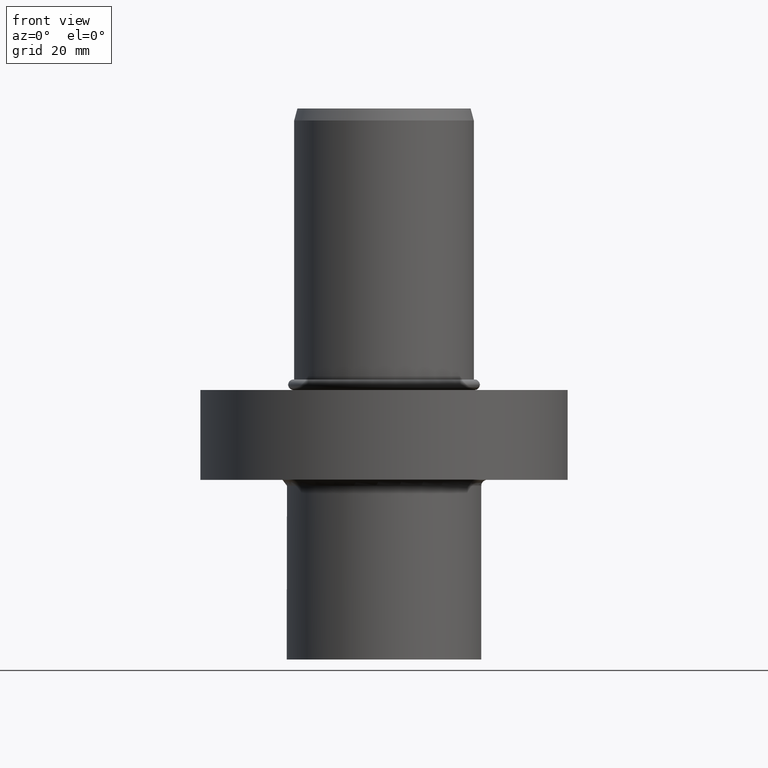
[diagram: clean part render]
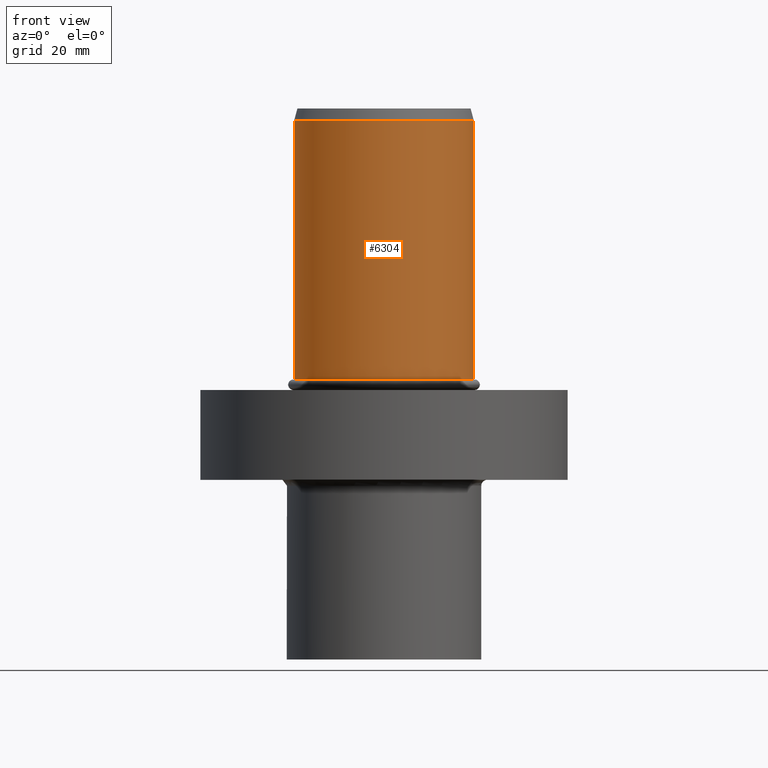
[diagram: same view with one face highlighted and labeled with its STEP entity id]
A machine part, front view. The second image highlights one B-rep face of the part: STEP entity #6304.
In plain terms, the highlighted cylindrical surface (bore or boss wall) has radius 30 mm, axis along (0, 0, 1).
Its self-contained STEP definition (entity closure, byte-faithful):
#14 =( BOUNDED_CURVE ( )  B_SPLINE_CURVE ( 3, ( #11727, #9599, #10872, #2144 ),
 .UNSPECIFIED., .F., .F. ) 
 B_SPLINE_CURVE_WITH_KNOTS ( ( 4, 4 ),
 ( 2.460152996089493005, 2.555907110132639826 ),
 .UNSPECIFIED. ) 
 CURVE ( )  GEOMETRIC_REPRESENTATION_ITEM ( )  RATIONAL_B_SPLINE_CURVE ( ( 1.000000000000000000, 0.9992360750769040401, 0.9992360750769040401, 1.000000000000000000 ) ) 
 REPRESENTATION_ITEM ( '' )  );
#53 = LINE ( 'NONE', #3240, #12685 ) ;
#67 = CARTESIAN_POINT ( 'NONE',  ( 16.58312395177700083, 25.00000000000000000, 16.00000000000000000 ) ) ;
#74 = EDGE_CURVE ( 'NONE', #9437, #3814, #6940, .T. ) ;
#76 = EDGE_CURVE ( 'NONE', #6150, #6893, #8087, .T. ) ;
#78 = CARTESIAN_POINT ( 'NONE',  ( 18.89735431217819794, 23.30000000000000071, 49.70000000000000284 ) ) ;
#95 = EDGE_CURVE ( 'NONE', #6652, #8851, #5955, .T. ) ;
#137 = CARTESIAN_POINT ( 'NONE',  ( 18.89735431217819794, 23.30000000000000071, 45.69999999999999574 ) ) ;
#141 = CARTESIAN_POINT ( 'NONE',  ( -18.89735431217819794, 23.30000000000000071, 21.69999999999999929 ) ) ;
#161 = EDGE_CURVE ( 'NONE', #8851, #8178, #11058, .T. ) ;
#174 = EDGE_CURVE ( 'NONE', #10053, #1658, #11612, .T. ) ;
#193 = VERTEX_POINT ( 'NONE', #10844 ) ;
#203 = CARTESIAN_POINT ( 'NONE',  ( 17.38137989915074755, 24.47049690717833315, 38.87049690717829264 ) ) ;
#219 = ORIENTED_EDGE ( 'NONE', *, *, #13774, .T. ) ;
#237 = EDGE_CURVE ( 'NONE', #13995, #8702, #10079, .T. ) ;
#282 = VERTEX_POINT ( 'NONE', #1602 ) ;
#331 = CARTESIAN_POINT ( 'NONE',  ( 18.89735431217819794, 23.30000000000000071, 29.69999999999999929 ) ) ;
#355 = CARTESIAN_POINT ( 'NONE',  ( -17.38137989915073334, 24.47049690717831893, 38.87049690717828554 ) ) ;
#356 = VERTEX_POINT ( 'NONE', #6063 ) ;
#375 = CARTESIAN_POINT ( 'NONE',  ( 18.89735431217819794, 23.30000000000000071, 57.70000000000000284 ) ) ;
#383 =( BOUNDED_CURVE ( )  B_SPLINE_CURVE ( 3, ( #11099, #10184, #12116, #6704 ),
 .UNSPECIFIED., .F., .T. ) 
 B_SPLINE_CURVE_WITH_KNOTS ( ( 4, 4 ),
 ( 2.460152996089497002, 2.555907110132643378 ),
 .UNSPECIFIED. ) 
 CURVE ( )  GEOMETRIC_REPRESENTATION_ITEM ( )  RATIONAL_B_SPLINE_CURVE ( ( 1.000000000000000000, 0.9992360750769040401, 0.9992360750769040401, 1.000000000000000000 ) ) 
 REPRESENTATION_ITEM ( '' )  );
#390 = VERTEX_POINT ( 'NONE', #13832 ) ;
#391 = FACE_OUTER_BOUND ( 'NONE', #11329, .T. ) ;
#401 = LINE ( 'NONE', #10182, #12274 ) ;
#433 = VERTEX_POINT ( 'NONE', #8273 ) ;
#437 = EDGE_CURVE ( 'NONE', #1512, #4873, #9147, .T. ) ;
#449 = ORIENTED_EDGE ( 'NONE', *, *, #8462, .F. ) ;
#453 = CYLINDRICAL_SURFACE ( 'NONE', #9825, 30.00000000000000000 ) ;
#460 =( BOUNDED_CURVE ( )  B_SPLINE_CURVE ( 3, ( #10325, #13674, #533, #5061 ),
 .UNSPECIFIED., .F., .T. ) 
 B_SPLINE_CURVE_WITH_KNOTS ( ( 4, 4 ),
 ( 3.727278197046944630, 3.823032311090091007 ),
 .UNSPECIFIED. ) 
 CURVE ( )  GEOMETRIC_REPRESENTATION_ITEM ( )  RATIONAL_B_SPLINE_CURVE ( ( 1.000000000000000000, 0.9992360750769040401, 0.9992360750769040401, 1.000000000000000000 ) ) 
 REPRESENTATION_ITEM ( '' )  );
#466 = LINE ( 'NONE', #12324, #5195 ) ;
#504 = VECTOR ( 'NONE', #4166, 1000.000000000000000 ) ;
#522 = CARTESIAN_POINT ( 'NONE',  ( 18.15337976922591068, 23.90339701877299916, 66.30339701877316827 ) ) ;
#526 = DIRECTION ( 'NONE',  ( -1.000000000000000000, 4.440892098500630106E-16, 4.440892098500630106E-16 ) ) ;
#533 = CARTESIAN_POINT ( 'NONE',  ( -18.15337976922584318, 23.90339701877300982, 22.30339701877300129 ) ) ;
#542 = CARTESIAN_POINT ( 'NONE',  ( -16.58312395177700083, 25.00000000000000000, 20.00000000000000000 ) ) ;
#543 =( BOUNDED_CURVE ( )  B_SPLINE_CURVE ( 3, ( #1797, #6119, #10465, #11594 ),
 .UNSPECIFIED., .F., .T. ) 
 B_SPLINE_CURVE_WITH_KNOTS ( ( 4, 4 ),
 ( 2.460152996089493005, 2.555907110132639382 ),
 .UNSPECIFIED. ) 
 CURVE ( )  GEOMETRIC_REPRESENTATION_ITEM ( )  RATIONAL_B_SPLINE_CURVE ( ( 1.000000000000000000, 0.9992360750769040401, 0.9992360750769040401, 1.000000000000000000 ) ) 
 REPRESENTATION_ITEM ( '' )  );
#603 = VERTEX_POINT ( 'NONE', #2170 ) ;
#609 = VERTEX_POINT ( 'NONE', #11458 ) ;
#640 = CARTESIAN_POINT ( 'NONE',  ( 18.15337976922591068, 23.90339701877299206, 42.30339701877315406 ) ) ;
#650 = VERTEX_POINT ( 'NONE', #13311 ) ;
#699 = VERTEX_POINT ( 'NONE', #10959 ) ;
#719 = CARTESIAN_POINT ( 'NONE',  ( -16.58312395177700083, 25.00000000000000000, 28.00000000000000000 ) ) ;
#725 = CARTESIAN_POINT ( 'NONE',  ( -18.15337976922589291, 23.90339701877297784, 42.30339701877313985 ) ) ;
#727 = CARTESIAN_POINT ( 'NONE',  ( 16.58312395177700083, 25.00000000000000000, 39.39999999999999858 ) ) ;
#739 = CARTESIAN_POINT ( 'NONE',  ( 16.58312395177700083, 25.00000000000000000, 67.40000000000000568 ) ) ;
#763 = CARTESIAN_POINT ( 'NONE',  ( -17.38137989915073689, 24.47049690717831538, 34.87049690717828554 ) ) ;
#775 = VECTOR ( 'NONE', #9092, 1000.000000000000000 ) ;
#776 = CARTESIAN_POINT ( 'NONE',  ( -18.15337976922581831, 23.90339701877302048, 70.30339701877318248 ) ) ;
#789 = EDGE_LOOP ( 'NONE', ( #449, #5563, #5261, #3732, #1267, #1888, #10252, #9625, #11817, #9692, #1316, #7750, #11628, #11221, #7165, #9424, #9407, #12714, #6290, #5292, #3493, #8182, #10790, #4720, #4881, #11018, #11673, #9758, #13770, #4237, #8385, #7005, #11696, #9307, #3245, #6668, #5430, #12700, #1646, #1526, #3566, #6593, #219, #12131, #9332, #12596, #2749, #12393, #4845, #14013, #10839, #7746, #2671, #10430, #6554, #11165, #12102, #9942, #5162, #13305, #3809, #11610, #8805, #2705, #5308, #13952, #4036, #13128, #2891, #4790, #5674, #8097, #9125, #4780, #9720, #2921, #12924, #12593, #11587, #8256, #4458, #2546, #12606, #9830, #8071, #12320, #11082, #13587 ) ) ;
#804 = EDGE_CURVE ( 'NONE', #11737, #5730, #543, .T. ) ;
#838 = VECTOR ( 'NONE', #5363, 1000.000000000000000 ) ;
#841 = CARTESIAN_POINT ( 'NONE',  ( 18.15337976922586094, 23.90339701877301692, 18.30339701877300129 ) ) ;
#873 = CARTESIAN_POINT ( 'NONE',  ( 18.89735431217819794, 23.30000000000000071, 69.70000000000000284 ) ) ;
#911 = CARTESIAN_POINT ( 'NONE',  ( -16.58312395177700083, 25.00000000000000000, 55.39999999999999858 ) ) ;
#928 =( BOUNDED_CURVE ( )  B_SPLINE_CURVE ( 3, ( #13824, #1947, #11604, #10327 ),
 .UNSPECIFIED., .F., .F. ) 
 B_SPLINE_CURVE_WITH_KNOTS ( ( 4, 4 ),
 ( 3.727278197046944630, 3.823032311090091451 ),
 .UNSPECIFIED. ) 
 CURVE ( )  GEOMETRIC_REPRESENTATION_ITEM ( )  RATIONAL_B_SPLINE_CURVE ( ( 1.000000000000000000, 0.9992360750769040401, 0.9992360750769040401, 1.000000000000000000 ) ) 
 REPRESENTATION_ITEM ( '' )  );
#947 = CARTESIAN_POINT ( 'NONE',  ( -16.58312395177700083, 25.00000000000000000, 52.00000000000000000 ) ) ;
#953 = CARTESIAN_POINT ( 'NONE',  ( -18.89735431217819794, 23.30000000000000071, 45.69999999999999574 ) ) ;
#962 = VERTEX_POINT ( 'NONE', #2765 ) ;
#1048 = CARTESIAN_POINT ( 'NONE',  ( -16.58312395177700083, 25.00000000000000000, 4.302769414721900113E-15 ) ) ;
#1113 = VERTEX_POINT ( 'NONE', #5466 ) ;
#1138 = CARTESIAN_POINT ( 'NONE',  ( -18.15337976922583607, 23.90339701877301337, 38.30339701877298353 ) ) ;
#1140 = CARTESIAN_POINT ( 'NONE',  ( 17.38137989915080084, 24.47049690717830472, 48.52950309282152119 ) ) ;
#1151 = CARTESIAN_POINT ( 'NONE',  ( 16.58312395177700083, 25.00000000000000000, 27.40000000000000213 ) ) ;
#1179 = EDGE_CURVE ( 'NONE', #11442, #6370, #5351, .T. ) ;
#1198 = CARTESIAN_POINT ( 'NONE',  ( -18.15337976922589647, 23.90339701877297784, 53.09660298122688005 ) ) ;
#1203 = CARTESIAN_POINT ( 'NONE',  ( 17.38137989915079018, 24.47049690717829407, 16.52950309282152119 ) ) ;
#1213 = EDGE_CURVE ( 'NONE', #650, #13068, #8158, .T. ) ;
#1252 = CARTESIAN_POINT ( 'NONE',  ( -16.58312395177700083, 25.00000000000000000, 15.00000000000000000 ) ) ;
#1256 = CARTESIAN_POINT ( 'NONE',  ( -16.58312395177700083, 25.00000000000000000, 32.00000000000000000 ) ) ;
#1267 = ORIENTED_EDGE ( 'NONE', *, *, #4576, .T. ) ;
#1285 = EDGE_CURVE ( 'NONE', #1113, #12864, #12150, .T. ) ;
#1287 = LINE ( 'NONE', #5676, #12732 ) ;
#1316 = ORIENTED_EDGE ( 'NONE', *, *, #8658, .T. ) ;
#1325 = EDGE_CURVE ( 'NONE', #390, #3013, #2438, .T. ) ;
#1345 = EDGE_CURVE ( 'NONE', #11699, #7327, #4058, .T. ) ;
#1361 = EDGE_CURVE ( 'NONE', #3814, #12682, #13074, .T. ) ;
#1372 =( BOUNDED_CURVE ( )  B_SPLINE_CURVE ( 3, ( #11813, #12891, #6209, #3144 ),
 .UNSPECIFIED., .F., .T. ) 
 B_SPLINE_CURVE_WITH_KNOTS ( ( 4, 4 ),
 ( 3.727278197046944630, 3.823032311090091451 ),
 .UNSPECIFIED. ) 
 CURVE ( )  GEOMETRIC_REPRESENTATION_ITEM ( )  RATIONAL_B_SPLINE_CURVE ( ( 1.000000000000000000, 0.9992360750769040401, 0.9992360750769040401, 1.000000000000000000 ) ) 
 REPRESENTATION_ITEM ( '' )  );
#1435 = CARTESIAN_POINT ( 'NONE',  ( -16.58312395177690135, 25.00000000000000000, 68.00000000000000000 ) ) ;
#1456 = CARTESIAN_POINT ( 'NONE',  ( -18.89735431217819794, 23.30000000000000071, 17.69999999999999929 ) ) ;
#1463 =( BOUNDED_CURVE ( )  B_SPLINE_CURVE ( 3, ( #8588, #9876, #7940, #9072 ),
 .UNSPECIFIED., .F., .T. ) 
 B_SPLINE_CURVE_WITH_KNOTS ( ( 4, 4 ),
 ( 3.727278197046944630, 3.823032311090091451 ),
 .UNSPECIFIED. ) 
 CURVE ( )  GEOMETRIC_REPRESENTATION_ITEM ( )  RATIONAL_B_SPLINE_CURVE ( ( 1.000000000000000000, 0.9992360750769040401, 0.9992360750769040401, 1.000000000000000000 ) ) 
 REPRESENTATION_ITEM ( '' )  );
#1476 = CARTESIAN_POINT ( 'NONE',  ( -16.58312395177700083, 25.00000000000000000, 20.00000000000000000 ) ) ;
#1485 = CARTESIAN_POINT ( 'NONE',  ( -18.15337976922590002, 23.90339701877297784, 25.09660298122687294 ) ) ;
#1498 = DIRECTION ( 'NONE',  ( 4.440892098500630106E-16, 1.224646799147350002E-16, 1.000000000000000000 ) ) ;
#1499 = CARTESIAN_POINT ( 'NONE',  ( 18.15337976922591068, 23.90339701877299916, 62.30339701877316827 ) ) ;
#1503 = CARTESIAN_POINT ( 'NONE',  ( -18.15337976922589291, 23.90339701877297784, 37.09660298122687294 ) ) ;
#1512 = VERTEX_POINT ( 'NONE', #12729 ) ;
#1525 = CARTESIAN_POINT ( 'NONE',  ( -18.15337976922584318, 23.90339701877299916, 66.30339701877318248 ) ) ;
#1526 = ORIENTED_EDGE ( 'NONE', *, *, #2710, .T. ) ;
#1586 = CARTESIAN_POINT ( 'NONE',  ( 18.15337976922591423, 23.90339701877299206, 29.09660298122683386 ) ) ;
#1601 = EDGE_CURVE ( 'NONE', #699, #4604, #3434, .T. ) ;
#1602 = CARTESIAN_POINT ( 'NONE',  ( 16.58312395177700083, 25.00000000000000000, 36.00000000000000000 ) ) ;
#1620 = CARTESIAN_POINT ( 'NONE',  ( -18.89735431217819794, 23.30000000000000071, 53.69999999999999574 ) ) ;
#1630 = EDGE_CURVE ( 'NONE', #4367, #193, #11864, .T. ) ;
#1635 = CARTESIAN_POINT ( 'NONE',  ( -16.58312395177700083, 25.00000000000000000, 4.302769414721900113E-15 ) ) ;
#1646 = ORIENTED_EDGE ( 'NONE', *, *, #3874, .T. ) ;
#1658 = VERTEX_POINT ( 'NONE', #947 ) ;
#1662 = CARTESIAN_POINT ( 'NONE',  ( -18.15337976922583962, 23.90339701877300982, 30.30339701877300485 ) ) ;
#1685 = VERTEX_POINT ( 'NONE', #14003 ) ;
#1702 = CARTESIAN_POINT ( 'NONE',  ( 16.58312395177700083, 25.00000000000000000, 55.39999999999999858 ) ) ;
#1709 = EDGE_CURVE ( 'NONE', #12339, #1113, #1463, .T. ) ;
#1746 = CARTESIAN_POINT ( 'NONE',  ( 17.38137989915075465, 24.47049690717832249, 30.87049690717831396 ) ) ;
#1757 = LINE ( 'NONE', #11403, #8948 ) ;
#1797 = CARTESIAN_POINT ( 'NONE',  ( -18.89735431217819794, 23.30000000000000071, 49.70000000000000284 ) ) ;
#1814 = CARTESIAN_POINT ( 'NONE',  ( 18.89735431217819794, 23.30000000000000071, 17.69999999999999929 ) ) ;
#1852 = CARTESIAN_POINT ( 'NONE',  ( 16.58312395177700083, 25.00000000000000000, 15.00000000000000000 ) ) ;
#1862 = CARTESIAN_POINT ( 'NONE',  ( -16.58312395177700083, 25.00000000000000000, 4.302769414721900113E-15 ) ) ;
#1888 = ORIENTED_EDGE ( 'NONE', *, *, #11863, .T. ) ;
#1928 = LINE ( 'NONE', #5190, #4147 ) ;
#1938 = CARTESIAN_POINT ( 'NONE',  ( 16.58312395177700083, 25.00000000000000000, 47.39999999999999858 ) ) ;
#1947 = CARTESIAN_POINT ( 'NONE',  ( 17.38137989915079373, 24.47049690717830828, 44.52950309282152119 ) ) ;
#1957 = CARTESIAN_POINT ( 'NONE',  ( 18.15337976922586805, 23.90339701877301692, 30.30339701877301195 ) ) ;
#1959 = DIRECTION ( 'NONE',  ( 4.440892098500630106E-16, 1.224646799147350002E-16, 1.000000000000000000 ) ) ;
#1975 = DIRECTION ( 'NONE',  ( 4.440892098500630106E-16, 1.224646799147350002E-16, 1.000000000000000000 ) ) ;
#1986 = CARTESIAN_POINT ( 'NONE',  ( -6.218671481916381083, 31.87500000000002132, 8.124999999999952038 ) ) ;
#1990 =( BOUNDED_CURVE ( )  B_SPLINE_CURVE ( 3, ( #7640, #355, #1138, #6651 ),
 .UNSPECIFIED., .F., .F. ) 
 B_SPLINE_CURVE_WITH_KNOTS ( ( 4, 4 ),
 ( 3.727278197046944630, 3.823032311090091007 ),
 .UNSPECIFIED. ) 
 CURVE ( )  GEOMETRIC_REPRESENTATION_ITEM ( )  RATIONAL_B_SPLINE_CURVE ( ( 1.000000000000000000, 0.9992360750769040401, 0.9992360750769040401, 1.000000000000000000 ) ) 
 REPRESENTATION_ITEM ( '' )  );
#2001 = VERTEX_POINT ( 'NONE', #3453 ) ;
#2025 = CARTESIAN_POINT ( 'NONE',  ( -16.58312395177700083, 25.00000000000000000, 59.39999999999999858 ) ) ;
#2026 = VERTEX_POINT ( 'NONE', #6848 ) ;
#2042 = CARTESIAN_POINT ( 'NONE',  ( 18.89735431217819794, 23.30000000000000071, 61.69999999999999574 ) ) ;
#2053 = EDGE_CURVE ( 'NONE', #3640, #12693, #8624, .T. ) ;
#2063 = CARTESIAN_POINT ( 'NONE',  ( -16.58312395177700083, 25.00000000000000000, 60.00000000000000000 ) ) ;
#2144 = CARTESIAN_POINT ( 'NONE',  ( -16.58312395177700083, 25.00000000000000000, 44.00000000000000000 ) ) ;
#2152 = CARTESIAN_POINT ( 'NONE',  ( -16.58312395177700083, 25.00000000000000000, 32.00000000000000000 ) ) ;
#2170 = CARTESIAN_POINT ( 'NONE',  ( 16.58312395177700083, 25.00000000000000000, 63.39999999999999858 ) ) ;
#2200 = CARTESIAN_POINT ( 'NONE',  ( 16.58312395177700083, 25.00000000000000000, -1.042600341045870012E-14 ) ) ;
#2208 = VECTOR ( 'NONE', #1498, 1000.000000000000000 ) ;
#2254 = CARTESIAN_POINT ( 'NONE',  ( -18.89735431217819794, 23.30000000000000071, 37.69999999999999574 ) ) ;
#2256 = CARTESIAN_POINT ( 'NONE',  ( -17.38137989915078663, 24.47049690717828696, 52.52950309282157093 ) ) ;
#2287 = CARTESIAN_POINT ( 'NONE',  ( -18.15337976922589291, 23.90339701877297784, 46.30339701877314695 ) ) ;
#2290 = CARTESIAN_POINT ( 'NONE',  ( -16.58312395177700083, 25.00000000000000000, 28.00000000000000000 ) ) ;
#2329 = VERTEX_POINT ( 'NONE', #6881 ) ;
#2353 = CARTESIAN_POINT ( 'NONE',  ( 17.38137989915079373, 24.47049690717830828, 62.87049690717847028 ) ) ;
#2357 =( BOUNDED_CURVE ( )  B_SPLINE_CURVE ( 3, ( #141, #10918, #2391, #1476 ),
 .UNSPECIFIED., .F., .F. ) 
 B_SPLINE_CURVE_WITH_KNOTS ( ( 4, 4 ),
 ( 2.460152996089493449, 2.555907110132639826 ),
 .UNSPECIFIED. ) 
 CURVE ( )  GEOMETRIC_REPRESENTATION_ITEM ( )  RATIONAL_B_SPLINE_CURVE ( ( 1.000000000000000000, 0.9992360750769040401, 0.9992360750769040401, 1.000000000000000000 ) ) 
 REPRESENTATION_ITEM ( '' )  );
#2387 = EDGE_CURVE ( 'NONE', #13639, #699, #13731, .T. ) ;
#2391 = CARTESIAN_POINT ( 'NONE',  ( -17.38137989915079018, 24.47049690717828696, 20.52950309282156383 ) ) ;
#2397 = CARTESIAN_POINT ( 'NONE',  ( 16.58312395177700083, 25.00000000000000000, -1.042600341045870012E-14 ) ) ;
#2438 =( BOUNDED_CURVE ( )  B_SPLINE_CURVE ( 3, ( #12722, #12641, #6096, #719 ),
 .UNSPECIFIED., .F., .T. ) 
 B_SPLINE_CURVE_WITH_KNOTS ( ( 4, 4 ),
 ( 2.460152996089493449, 2.555907110132639826 ),
 .UNSPECIFIED. ) 
 CURVE ( )  GEOMETRIC_REPRESENTATION_ITEM ( )  RATIONAL_B_SPLINE_CURVE ( ( 1.000000000000000000, 0.9992360750769040401, 0.9992360750769040401, 1.000000000000000000 ) ) 
 REPRESENTATION_ITEM ( '' )  );
#2463 = LINE ( 'NONE', #2397, #12042 ) ;
#2468 = CARTESIAN_POINT ( 'NONE',  ( -16.58312395177700083, 25.00000000000000000, 24.00000000000000000 ) ) ;
#2507 = FACE_OUTER_BOUND ( 'NONE', #789, .T. ) ;
#2517 = VERTEX_POINT ( 'NONE', #1151 ) ;
#2546 = ORIENTED_EDGE ( 'NONE', *, *, #9863, .T. ) ;
#2563 = LINE ( 'NONE', #4377, #775 ) ;
#2587 = CARTESIAN_POINT ( 'NONE',  ( 18.89735431217819794, 23.30000000000000071, 41.70000000000000284 ) ) ;
#2619 = CARTESIAN_POINT ( 'NONE',  ( 18.15337976922591423, 23.90339701877300271, 70.30339701877316827 ) ) ;
#2667 = CARTESIAN_POINT ( 'NONE',  ( -16.58312395177700083, 25.00000000000000000, 64.00000000000000000 ) ) ;
#2671 = ORIENTED_EDGE ( 'NONE', *, *, #13304, .T. ) ;
#2705 = ORIENTED_EDGE ( 'NONE', *, *, #10180, .T. ) ;
#2710 = EDGE_CURVE ( 'NONE', #9308, #10272, #2357, .T. ) ;
#2720 = CARTESIAN_POINT ( 'NONE',  ( 16.58312395177700083, 25.00000000000000000, -1.042600341045870012E-14 ) ) ;
#2749 = ORIENTED_EDGE ( 'NONE', *, *, #2053, .T. ) ;
#2762 = CARTESIAN_POINT ( 'NONE',  ( 16.58312395177700083, 25.00000000000000000, -1.042600341045870012E-14 ) ) ;
#2765 = CARTESIAN_POINT ( 'NONE',  ( -16.58312395177700083, 25.00000000000000000, 27.40000000000000213 ) ) ;
#2793 = EDGE_CURVE ( 'NONE', #6370, #4329, #7192, .T. ) ;
#2810 =( BOUNDED_CURVE ( )  B_SPLINE_CURVE ( 3, ( #12083, #12878, #2287, #953 ),
 .UNSPECIFIED., .F., .T. ) 
 B_SPLINE_CURVE_WITH_KNOTS ( ( 4, 4 ),
 ( 3.727278197046946850, 3.823032311090093227 ),
 .UNSPECIFIED. ) 
 CURVE ( )  GEOMETRIC_REPRESENTATION_ITEM ( )  RATIONAL_B_SPLINE_CURVE ( ( 1.000000000000000000, 0.9992360750769040401, 0.9992360750769040401, 1.000000000000000000 ) ) 
 REPRESENTATION_ITEM ( '' )  );
#2860 = CARTESIAN_POINT ( 'NONE',  ( 17.38137989915075110, 24.47049690717832249, 26.87049690717831041 ) ) ;
#2891 = ORIENTED_EDGE ( 'NONE', *, *, #1179, .T. ) ;
#2892 =( BOUNDED_CURVE ( )  B_SPLINE_CURVE ( 3, ( #7808, #2619, #6669, #7946 ),
 .UNSPECIFIED., .F., .T. ) 
 B_SPLINE_CURVE_WITH_KNOTS ( ( 4, 4 ),
 ( 2.460152996089495225, 2.555907110132642046 ),
 .UNSPECIFIED. ) 
 CURVE ( )  GEOMETRIC_REPRESENTATION_ITEM ( )  RATIONAL_B_SPLINE_CURVE ( ( 1.000000000000000000, 0.9992360750769040401, 0.9992360750769040401, 1.000000000000000000 ) ) 
 REPRESENTATION_ITEM ( '' )  );
#2916 = VERTEX_POINT ( 'NONE', #6460 ) ;
#2921 = ORIENTED_EDGE ( 'NONE', *, *, #5411, .T. ) ;
#2923 = EDGE_CURVE ( 'NONE', #356, #650, #13150, .T. ) ;
#2940 = CARTESIAN_POINT ( 'NONE',  ( 1.749265572480700057E-15, 6.465521545702379770E-16, 3.514498995305369800 ) ) ;
#2967 = AXIS2_PLACEMENT_3D ( 'NONE', #2940, #4301, #4172 ) ;
#3006 = EDGE_CURVE ( 'NONE', #13912, #603, #12517, .T. ) ;
#3013 = VERTEX_POINT ( 'NONE', #2290 ) ;
#3100 = DIRECTION ( 'NONE',  ( -1.000000000000000000, 4.440892098500630106E-16, 4.625929269271485914E-16 ) ) ;
#3107 = CARTESIAN_POINT ( 'NONE',  ( -16.58312395177700083, 25.00000000000000000, 40.00000000000000000 ) ) ;
#3144 = CARTESIAN_POINT ( 'NONE',  ( 18.89735431217819794, 23.30000000000000071, 61.69999999999999574 ) ) ;
#3145 = CARTESIAN_POINT ( 'NONE',  ( 16.58312395177700083, 25.00000000000000000, 59.39999999999999858 ) ) ;
#3151 = CARTESIAN_POINT ( 'NONE',  ( -16.58312395177700083, 25.00000000000000000, 4.302769414721900113E-15 ) ) ;
#3206 = CARTESIAN_POINT ( 'NONE',  ( 18.89735431217819794, 23.30000000000000071, 33.70000000000000284 ) ) ;
#3240 = CARTESIAN_POINT ( 'NONE',  ( -16.58312395177700083, 25.00000000000000000, 4.302769414721900113E-15 ) ) ;
#3245 = ORIENTED_EDGE ( 'NONE', *, *, #11071, .T. ) ;
#3279 =( BOUNDED_CURVE ( )  B_SPLINE_CURVE ( 3, ( #7014, #640, #13646, #10090 ),
 .UNSPECIFIED., .F., .F. ) 
 B_SPLINE_CURVE_WITH_KNOTS ( ( 4, 4 ),
 ( 2.460152996089494781, 2.555907110132641602 ),
 .UNSPECIFIED. ) 
 CURVE ( )  GEOMETRIC_REPRESENTATION_ITEM ( )  RATIONAL_B_SPLINE_CURVE ( ( 1.000000000000000000, 0.9992360750769040401, 0.9992360750769040401, 1.000000000000000000 ) ) 
 REPRESENTATION_ITEM ( '' )  );
#3310 = CARTESIAN_POINT ( 'NONE',  ( 17.38137989915075110, 24.47049690717832249, 22.87049690717831396 ) ) ;
#3344 = CARTESIAN_POINT ( 'NONE',  ( -18.89735431217819794, 23.30000000000000071, 53.69999999999999574 ) ) ;
#3347 =( BOUNDED_CURVE ( )  B_SPLINE_CURVE ( 3, ( #3524, #13695, #776, #3878 ),
 .UNSPECIFIED., .F., .F. ) 
 B_SPLINE_CURVE_WITH_KNOTS ( ( 4, 4 ),
 ( 3.727278197046944186, 3.823032311090091007 ),
 .UNSPECIFIED. ) 
 CURVE ( )  GEOMETRIC_REPRESENTATION_ITEM ( )  RATIONAL_B_SPLINE_CURVE ( ( 1.000000000000000000, 0.9992360750769040401, 0.9992360750769040401, 1.000000000000000000 ) ) 
 REPRESENTATION_ITEM ( '' )  );
#3365 = VERTEX_POINT ( 'NONE', #2025 ) ;
#3376 = CARTESIAN_POINT ( 'NONE',  ( 16.58312395177700083, 25.00000000000000000, 64.00000000000000000 ) ) ;
#3388 = LINE ( 'NONE', #7716, #13334 ) ;
#3434 =( BOUNDED_CURVE ( )  B_SPLINE_CURVE ( 3, ( #8164, #10449, #725, #5040 ),
 .UNSPECIFIED., .F., .T. ) 
 B_SPLINE_CURVE_WITH_KNOTS ( ( 4, 4 ),
 ( 3.727278197046946406, 3.823032311090093227 ),
 .UNSPECIFIED. ) 
 CURVE ( )  GEOMETRIC_REPRESENTATION_ITEM ( )  RATIONAL_B_SPLINE_CURVE ( ( 1.000000000000000000, 0.9992360750769040401, 0.9992360750769040401, 1.000000000000000000 ) ) 
 REPRESENTATION_ITEM ( '' )  );
#3435 = EDGE_CURVE ( 'NONE', #10235, #1512, #4803, .T. ) ;
#3453 = CARTESIAN_POINT ( 'NONE',  ( -18.89735431217819794, 23.30000000000000071, 17.69999999999999929 ) ) ;
#3468 = CARTESIAN_POINT ( 'NONE',  ( -18.89735431217819794, 23.30000000000000071, 57.70000000000000284 ) ) ;
#3492 = CARTESIAN_POINT ( 'NONE',  ( -16.58312395177700083, 25.00000000000000000, 67.40000000000000568 ) ) ;
#3493 = ORIENTED_EDGE ( 'NONE', *, *, #10454, .T. ) ;
#3524 = CARTESIAN_POINT ( 'NONE',  ( -16.58312395177690135, 25.00000000000000000, 71.40000000000000568 ) ) ;
#3543 = CARTESIAN_POINT ( 'NONE',  ( 16.58312395177700083, 25.00000000000000000, 90.00000000000000000 ) ) ;
#3561 = CARTESIAN_POINT ( 'NONE',  ( 16.58312395177700083, 25.00000000000000000, 24.00000000000000000 ) ) ;
#3566 = ORIENTED_EDGE ( 'NONE', *, *, #9095, .T. ) ;
#3599 = VECTOR ( 'NONE', #6377, 1000.000000000000000 ) ;
#3640 = VERTEX_POINT ( 'NONE', #7955 ) ;
#3647 = CARTESIAN_POINT ( 'NONE',  ( -16.58312395177700083, 25.00000000000000000, 67.40000000000000568 ) ) ;
#3725 = CARTESIAN_POINT ( 'NONE',  ( 17.38137989915080084, 24.47049690717831183, 64.52950309282151409 ) ) ;
#3730 = CARTESIAN_POINT ( 'NONE',  ( 18.89735431217819794, 23.30000000000000071, 41.70000000000000284 ) ) ;
#3732 = ORIENTED_EDGE ( 'NONE', *, *, #13805, .T. ) ;
#3759 = CARTESIAN_POINT ( 'NONE',  ( 16.58312395177700083, 25.00000000000000000, 24.00000000000000000 ) ) ;
#3795 =( BOUNDED_CURVE ( )  B_SPLINE_CURVE ( 3, ( #5913, #7042, #11095, #2587 ),
 .UNSPECIFIED., .F., .T. ) 
 B_SPLINE_CURVE_WITH_KNOTS ( ( 4, 4 ),
 ( 3.727278197046944630, 3.823032311090091451 ),
 .UNSPECIFIED. ) 
 CURVE ( )  GEOMETRIC_REPRESENTATION_ITEM ( )  RATIONAL_B_SPLINE_CURVE ( ( 1.000000000000000000, 0.9992360750769040401, 0.9992360750769040401, 1.000000000000000000 ) ) 
 REPRESENTATION_ITEM ( '' )  );
#3804 = CARTESIAN_POINT ( 'NONE',  ( -16.58312395177700083, 25.00000000000000000, 16.00000000000000000 ) ) ;
#3809 = ORIENTED_EDGE ( 'NONE', *, *, #7501, .T. ) ;
#3814 = VERTEX_POINT ( 'NONE', #1252 ) ;
#3815 = CARTESIAN_POINT ( 'NONE',  ( -18.15337976922584318, 23.90339701877300982, 26.30339701877300485 ) ) ;
#3818 = CARTESIAN_POINT ( 'NONE',  ( 18.89735431217819794, 23.30000000000000071, 17.69999999999999929 ) ) ;
#3874 = EDGE_CURVE ( 'NONE', #193, #9308, #460, .T. ) ;
#3878 = CARTESIAN_POINT ( 'NONE',  ( -18.89735431217810202, 23.30000000000000071, 69.70000000000000284 ) ) ;
#3889 = EDGE_CURVE ( 'NONE', #5359, #390, #7784, .T. ) ;
#3894 =( BOUNDED_CURVE ( )  B_SPLINE_CURVE ( 3, ( #8639, #4316, #10968, #1256 ),
 .UNSPECIFIED., .F., .F. ) 
 B_SPLINE_CURVE_WITH_KNOTS ( ( 4, 4 ),
 ( 2.460152996089493449, 2.555907110132639826 ),
 .UNSPECIFIED. ) 
 CURVE ( )  GEOMETRIC_REPRESENTATION_ITEM ( )  RATIONAL_B_SPLINE_CURVE ( ( 1.000000000000000000, 0.9992360750769040401, 0.9992360750769040401, 1.000000000000000000 ) ) 
 REPRESENTATION_ITEM ( '' )  );
#3898 = CARTESIAN_POINT ( 'NONE',  ( -16.58312395177700083, 25.00000000000000000, 27.40000000000000213 ) ) ;
#3914 = DIRECTION ( 'NONE',  ( -4.440892098500630106E-16, -1.224646799147350002E-16, -1.000000000000000000 ) ) ;
#3962 = CARTESIAN_POINT ( 'NONE',  ( -18.89735431217810202, 23.30000000000000071, 65.69999999999998863 ) ) ;
#3970 = CARTESIAN_POINT ( 'NONE',  ( -18.15337976922582897, 23.90339701877302048, 69.09660298122683741 ) ) ;
#4013 = CARTESIAN_POINT ( 'NONE',  ( 16.58312395177700083, 25.00000000000000000, 27.40000000000000213 ) ) ;
#4036 = ORIENTED_EDGE ( 'NONE', *, *, #13029, .T. ) ;
#4042 = CARTESIAN_POINT ( 'NONE',  ( 3.996802888650559759E-14, 1.102182119232619962E-14, 90.00000000000000000 ) ) ;
#4052 = LINE ( 'NONE', #7286, #4610 ) ;
#4058 = LINE ( 'NONE', #9375, #6137 ) ;
#4147 = VECTOR ( 'NONE', #7301, 1000.000000000000000 ) ;
#4166 = DIRECTION ( 'NONE',  ( -4.440892098500630106E-16, -1.224646799147350002E-16, -1.000000000000000000 ) ) ;
#4172 = DIRECTION ( 'NONE',  ( -1.000000000000000000, 4.440892098500630106E-16, 4.481368979606751332E-16 ) ) ;
#4194 = VECTOR ( 'NONE', #1959, 1000.000000000000000 ) ;
#4237 = ORIENTED_EDGE ( 'NONE', *, *, #10217, .T. ) ;
#4240 = DIRECTION ( 'NONE',  ( -4.440892098500630106E-16, -1.224646799147350002E-16, -1.000000000000000000 ) ) ;
#4274 = CARTESIAN_POINT ( 'NONE',  ( -18.89735431217819794, 23.30000000000000071, 61.69999999999999574 ) ) ;
#4280 =( BOUNDED_CURVE ( )  B_SPLINE_CURVE ( 3, ( #5063, #6124, #2860, #4013 ),
 .UNSPECIFIED., .F., .T. ) 
 B_SPLINE_CURVE_WITH_KNOTS ( ( 4, 4 ),
 ( 2.460152996089496558, 2.555907110132642934 ),
 .UNSPECIFIED. ) 
 CURVE ( )  GEOMETRIC_REPRESENTATION_ITEM ( )  RATIONAL_B_SPLINE_CURVE ( ( 1.000000000000000000, 0.9992360750769040401, 0.9992360750769040401, 1.000000000000000000 ) ) 
 REPRESENTATION_ITEM ( '' )  );
#4299 = VERTEX_POINT ( 'NONE', #3730 ) ;
#4301 = DIRECTION ( 'NONE',  ( 4.440892098500630106E-16, 1.224646799147350002E-16, 1.000000000000000000 ) ) ;
#4311 = ORIENTED_EDGE ( 'NONE', *, *, #13152, .T. ) ;
#4316 = CARTESIAN_POINT ( 'NONE',  ( -18.15337976922589647, 23.90339701877297784, 33.09660298122686584 ) ) ;
#4325 = CARTESIAN_POINT ( 'NONE',  ( 18.15337976922591778, 23.90339701877300271, 69.09660298122683741 ) ) ;
#4328 = VECTOR ( 'NONE', #11237, 1000.000000000000000 ) ;
#4329 = VERTEX_POINT ( 'NONE', #6648 ) ;
#4351 = EDGE_CURVE ( 'NONE', #6463, #13115, #3347, .T. ) ;
#4367 = VERTEX_POINT ( 'NONE', #13266 ) ;
#4377 = CARTESIAN_POINT ( 'NONE',  ( -16.58312395177700083, 25.00000000000000000, 4.302769414721900113E-15 ) ) ;
#4380 = EDGE_CURVE ( 'NONE', #9393, #6923, #4882, .T. ) ;
#4386 = CARTESIAN_POINT ( 'NONE',  ( 18.89735431217819794, 23.30000000000000071, 21.69999999999999929 ) ) ;
#4411 = CARTESIAN_POINT ( 'NONE',  ( 16.58312395177700083, 25.00000000000000000, 20.00000000000000000 ) ) ;
#4447 = CARTESIAN_POINT ( 'NONE',  ( -18.89735431217819794, 23.30000000000000071, 45.69999999999999574 ) ) ;
#4458 = ORIENTED_EDGE ( 'NONE', *, *, #3006, .T. ) ;
#4461 = CARTESIAN_POINT ( 'NONE',  ( 16.58312395177700083, 25.00000000000000000, 48.00000000000000000 ) ) ;
#4527 = CARTESIAN_POINT ( 'NONE',  ( -17.38137989915078663, 24.47049690717828696, 56.52950309282157093 ) ) ;
#4561 = EDGE_CURVE ( 'NONE', #4873, #5066, #13751, .T. ) ;
#4569 = DIRECTION ( 'NONE',  ( 4.440892098500630106E-16, 1.224646799147350002E-16, 1.000000000000000000 ) ) ;
#4576 = EDGE_CURVE ( 'NONE', #9723, #13287, #7611, .T. ) ;
#4604 = VERTEX_POINT ( 'NONE', #8538 ) ;
#4610 = VECTOR ( 'NONE', #6373, 1000.000000000000000 ) ;
#4720 = ORIENTED_EDGE ( 'NONE', *, *, #1601, .T. ) ;
#4721 =( BOUNDED_CURVE ( )  B_SPLINE_CURVE ( 3, ( #10351, #8216, #13778, #13556 ),
 .UNSPECIFIED., .F., .T. ) 
 B_SPLINE_CURVE_WITH_KNOTS ( ( 4, 4 ),
 ( 2.460152996089493449, 2.555907110132639826 ),
 .UNSPECIFIED. ) 
 CURVE ( )  GEOMETRIC_REPRESENTATION_ITEM ( )  RATIONAL_B_SPLINE_CURVE ( ( 1.000000000000000000, 0.9992360750769040401, 0.9992360750769040401, 1.000000000000000000 ) ) 
 REPRESENTATION_ITEM ( '' )  );
#4725 = CARTESIAN_POINT ( 'NONE',  ( 18.89735431217819794, 23.30000000000000071, 37.69999999999999574 ) ) ;
#4780 = ORIENTED_EDGE ( 'NONE', *, *, #1709, .T. ) ;
#4790 = ORIENTED_EDGE ( 'NONE', *, *, #2793, .T. ) ;
#4795 = CARTESIAN_POINT ( 'NONE',  ( 16.58312395177700083, 25.00000000000000000, 64.00000000000000000 ) ) ;
#4803 =( BOUNDED_CURVE ( )  B_SPLINE_CURVE ( 3, ( #7971, #11299, #1586, #331 ),
 .UNSPECIFIED., .F., .T. ) 
 B_SPLINE_CURVE_WITH_KNOTS ( ( 4, 4 ),
 ( 3.727278197046945074, 3.823032311090091895 ),
 .UNSPECIFIED. ) 
 CURVE ( )  GEOMETRIC_REPRESENTATION_ITEM ( )  RATIONAL_B_SPLINE_CURVE ( ( 1.000000000000000000, 0.9992360750769040401, 0.9992360750769040401, 1.000000000000000000 ) ) 
 REPRESENTATION_ITEM ( '' )  );
#4810 = VERTEX_POINT ( 'NONE', #8956 ) ;
#4821 = LINE ( 'NONE', #13560, #13673 ) ;
#4833 = CARTESIAN_POINT ( 'NONE',  ( -18.89735431217819794, 23.30000000000000071, 37.69999999999999574 ) ) ;
#4835 = CARTESIAN_POINT ( 'NONE',  ( -16.58312395177700083, 25.00000000000000000, 39.39999999999999858 ) ) ;
#4845 = ORIENTED_EDGE ( 'NONE', *, *, #11942, .T. ) ;
#4871 = CARTESIAN_POINT ( 'NONE',  ( -16.58312395177700083, 25.00000000000000000, 63.39999999999999858 ) ) ;
#4873 = VERTEX_POINT ( 'NONE', #9024 ) ;
#4881 = ORIENTED_EDGE ( 'NONE', *, *, #10065, .T. ) ;
#4882 =( BOUNDED_CURVE ( )  B_SPLINE_CURVE ( 3, ( #3962, #13838, #5010, #2667 ),
 .UNSPECIFIED., .F., .T. ) 
 B_SPLINE_CURVE_WITH_KNOTS ( ( 4, 4 ),
 ( 2.460152996089495225, 2.555907110132639382 ),
 .UNSPECIFIED. ) 
 CURVE ( )  GEOMETRIC_REPRESENTATION_ITEM ( )  RATIONAL_B_SPLINE_CURVE ( ( 1.000000000000000000, 0.9992360750769040401, 0.9992360750769040401, 1.000000000000000000 ) ) 
 REPRESENTATION_ITEM ( '' )  );
#4964 = CARTESIAN_POINT ( 'NONE',  ( -16.58312395177700083, 25.00000000000000000, 60.00000000000000000 ) ) ;
#5010 = CARTESIAN_POINT ( 'NONE',  ( -17.38137989915076176, 24.47049690717829407, 64.52950309282155672 ) ) ;
#5015 = VERTEX_POINT ( 'NONE', #3543 ) ;
#5040 = CARTESIAN_POINT ( 'NONE',  ( -18.89735431217819794, 23.30000000000000071, 41.70000000000000284 ) ) ;
#5061 = CARTESIAN_POINT ( 'NONE',  ( -18.89735431217819794, 23.30000000000000071, 21.69999999999999929 ) ) ;
#5063 = CARTESIAN_POINT ( 'NONE',  ( 18.89735431217819794, 23.30000000000000071, 25.69999999999999929 ) ) ;
#5066 = VERTEX_POINT ( 'NONE', #10870 ) ;
#5110 = CIRCLE ( 'NONE', #13062, 30.00000000000000000 ) ;
#5152 = CARTESIAN_POINT ( 'NONE',  ( 16.58312395177700083, 25.00000000000000000, -1.042600341045870012E-14 ) ) ;
#5162 = ORIENTED_EDGE ( 'NONE', *, *, #6472, .T. ) ;
#5163 = EDGE_CURVE ( 'NONE', #13166, #5015, #4821, .T. ) ;
#5168 = CARTESIAN_POINT ( 'NONE',  ( -18.15337976922589291, 23.90339701877297784, 50.30339701877313985 ) ) ;
#5190 = CARTESIAN_POINT ( 'NONE',  ( 16.58312395177700083, 25.00000000000000000, -1.042600341045870012E-14 ) ) ;
#5193 = EDGE_CURVE ( 'NONE', #962, #5438, #9232, .T. ) ;
#5195 = VECTOR ( 'NONE', #5707, 1000.000000000000000 ) ;
#5261 = ORIENTED_EDGE ( 'NONE', *, *, #4351, .T. ) ;
#5262 =( BOUNDED_CURVE ( )  B_SPLINE_CURVE ( 3, ( #4461, #1140, #10925, #78 ),
 .UNSPECIFIED., .F., .F. ) 
 B_SPLINE_CURVE_WITH_KNOTS ( ( 4, 4 ),
 ( 3.727278197046945074, 3.823032311090091451 ),
 .UNSPECIFIED. ) 
 CURVE ( )  GEOMETRIC_REPRESENTATION_ITEM ( )  RATIONAL_B_SPLINE_CURVE ( ( 1.000000000000000000, 0.9992360750769040401, 0.9992360750769040401, 1.000000000000000000 ) ) 
 REPRESENTATION_ITEM ( '' )  );
#5292 = ORIENTED_EDGE ( 'NONE', *, *, #7596, .T. ) ;
#5295 = CARTESIAN_POINT ( 'NONE',  ( -16.58312395177700083, 25.00000000000000000, 56.00000000000000000 ) ) ;
#5308 = ORIENTED_EDGE ( 'NONE', *, *, #11883, .T. ) ;
#5338 = CARTESIAN_POINT ( 'NONE',  ( 16.58312395177700083, 25.00000000000000000, 68.00000000000000000 ) ) ;
#5351 =( BOUNDED_CURVE ( )  B_SPLINE_CURVE ( 3, ( #137, #10244, #9104, #7576 ),
 .UNSPECIFIED., .F., .T. ) 
 B_SPLINE_CURVE_WITH_KNOTS ( ( 4, 4 ),
 ( 2.460152996089494781, 2.555907110132641602 ),
 .UNSPECIFIED. ) 
 CURVE ( )  GEOMETRIC_REPRESENTATION_ITEM ( )  RATIONAL_B_SPLINE_CURVE ( ( 1.000000000000000000, 0.9992360750769040401, 0.9992360750769040401, 1.000000000000000000 ) ) 
 REPRESENTATION_ITEM ( '' )  );
#5359 = VERTEX_POINT ( 'NONE', #13788 ) ;
#5363 = DIRECTION ( 'NONE',  ( -4.440892098500630106E-16, -1.224646799147350002E-16, -1.000000000000000000 ) ) ;
#5388 = VECTOR ( 'NONE', #6874, 1000.000000000000000 ) ;
#5411 = EDGE_CURVE ( 'NONE', #12864, #356, #4052, .T. ) ;
#5430 = ORIENTED_EDGE ( 'NONE', *, *, #8037, .T. ) ;
#5438 = VERTEX_POINT ( 'NONE', #12399 ) ;
#5465 = CARTESIAN_POINT ( 'NONE',  ( -18.15337976922589291, 23.90339701877297784, 61.09660298122689426 ) ) ;
#5466 = CARTESIAN_POINT ( 'NONE',  ( 18.89735431217819794, 23.30000000000000071, 53.69999999999999574 ) ) ;
#5494 = CARTESIAN_POINT ( 'NONE',  ( 18.89735431217819794, 23.30000000000000071, 25.69999999999999929 ) ) ;
#5496 = CARTESIAN_POINT ( 'NONE',  ( 16.58312395177700083, 25.00000000000000000, -1.042600341045870012E-14 ) ) ;
#5519 = CARTESIAN_POINT ( 'NONE',  ( -16.58312395177700083, 25.00000000000000000, 52.00000000000000000 ) ) ;
#5563 = ORIENTED_EDGE ( 'NONE', *, *, #12539, .T. ) ;
#5655 = VERTEX_POINT ( 'NONE', #4835 ) ;
#5659 = EDGE_CURVE ( 'NONE', #10850, #5655, #2563, .T. ) ;
#5674 = ORIENTED_EDGE ( 'NONE', *, *, #9152, .T. ) ;
#5676 = CARTESIAN_POINT ( 'NONE',  ( -16.58312395177700083, 25.00000000000000000, 4.302769414721900113E-15 ) ) ;
#5699 = VERTEX_POINT ( 'NONE', #727 ) ;
#5704 = VERTEX_POINT ( 'NONE', #4964 ) ;
#5707 = DIRECTION ( 'NONE',  ( -4.440892098500630106E-16, -1.224646799147350002E-16, -1.000000000000000000 ) ) ;
#5708 = CARTESIAN_POINT ( 'NONE',  ( -17.38137989915075821, 24.47049690717829407, 66.87049690717847739 ) ) ;
#5710 = EDGE_CURVE ( 'NONE', #2916, #12339, #1928, .T. ) ;
#5719 = CARTESIAN_POINT ( 'NONE',  ( 18.89735431217819794, 23.30000000000000071, 65.69999999999998863 ) ) ;
#5729 = DIRECTION ( 'NONE',  ( 4.440892098500630106E-16, 1.224646799147350002E-16, 1.000000000000000000 ) ) ;
#5730 = VERTEX_POINT ( 'NONE', #13574 ) ;
#5790 =( BOUNDED_CURVE ( )  B_SPLINE_CURVE ( 3, ( #4386, #12047, #3310, #9850 ),
 .UNSPECIFIED., .F., .T. ) 
 B_SPLINE_CURVE_WITH_KNOTS ( ( 4, 4 ),
 ( 2.460152996089496558, 2.555907110132642934 ),
 .UNSPECIFIED. ) 
 CURVE ( )  GEOMETRIC_REPRESENTATION_ITEM ( )  RATIONAL_B_SPLINE_CURVE ( ( 1.000000000000000000, 0.9992360750769040401, 0.9992360750769040401, 1.000000000000000000 ) ) 
 REPRESENTATION_ITEM ( '' )  );
#5827 = LINE ( 'NONE', #7964, #12916 ) ;
#5846 = DIRECTION ( 'NONE',  ( -4.440892098500630106E-16, -1.224646799147350002E-16, -1.000000000000000000 ) ) ;
#5881 = CARTESIAN_POINT ( 'NONE',  ( 16.58312395177700083, 25.00000000000000000, 35.39999999999999858 ) ) ;
#5913 = CARTESIAN_POINT ( 'NONE',  ( 16.58312395177700083, 25.00000000000000000, 40.00000000000000000 ) ) ;
#5951 = CARTESIAN_POINT ( 'NONE',  ( 18.15337976922591068, 23.90339701877299561, 58.30339701877316116 ) ) ;
#5955 = LINE ( 'NONE', #2762, #2208 ) ;
#5970 = CARTESIAN_POINT ( 'NONE',  ( 17.38137989915079373, 24.47049690717830828, 66.87049690717849160 ) ) ;
#6054 = VERTEX_POINT ( 'NONE', #12334 ) ;
#6063 = CARTESIAN_POINT ( 'NONE',  ( 16.58312395177700083, 25.00000000000000000, 56.00000000000000000 ) ) ;
#6074 = VERTEX_POINT ( 'NONE', #11460 ) ;
#6096 = CARTESIAN_POINT ( 'NONE',  ( -17.38137989915078663, 24.47049690717828696, 28.52950309282156383 ) ) ;
#6119 = CARTESIAN_POINT ( 'NONE',  ( -18.15337976922590002, 23.90339701877297784, 49.09660298122687294 ) ) ;
#6124 = CARTESIAN_POINT ( 'NONE',  ( 18.15337976922586449, 23.90339701877301692, 26.30339701877300840 ) ) ;
#6137 = VECTOR ( 'NONE', #7291, 1000.000000000000000 ) ;
#6150 = VERTEX_POINT ( 'NONE', #5295 ) ;
#6153 = CARTESIAN_POINT ( 'NONE',  ( 16.58312395177700083, 25.00000000000000000, 36.00000000000000000 ) ) ;
#6203 = EDGE_CURVE ( 'NONE', #2517, #10235, #10690, .T. ) ;
#6209 = CARTESIAN_POINT ( 'NONE',  ( 18.15337976922591423, 23.90339701877300271, 61.09660298122684452 ) ) ;
#6218 = LINE ( 'NONE', #5152, #4194 ) ;
#6254 =( BOUNDED_CURVE ( )  B_SPLINE_CURVE ( 3, ( #13456, #10104, #10239, #1456 ),
 .UNSPECIFIED., .F., .F. ) 
 B_SPLINE_CURVE_WITH_KNOTS ( ( 4, 4 ),
 ( 3.727278197046944630, 3.823032311090091007 ),
 .UNSPECIFIED. ) 
 CURVE ( )  GEOMETRIC_REPRESENTATION_ITEM ( )  RATIONAL_B_SPLINE_CURVE ( ( 1.000000000000000000, 0.9992360750769040401, 0.9992360750769040401, 1.000000000000000000 ) ) 
 REPRESENTATION_ITEM ( '' )  );
#6290 = ORIENTED_EDGE ( 'NONE', *, *, #804, .T. ) ;
#6302 = EDGE_CURVE ( 'NONE', #9849, #2001, #6254, .T. ) ;
#6304 = ADVANCED_FACE ( 'Defeature completata1_23', ( #391, #2507 ), #453, .T. ) ;
#6310 = CARTESIAN_POINT ( 'NONE',  ( -17.38137989915078307, 24.47049690717828696, 60.52950309282157804 ) ) ;
#6370 = VERTEX_POINT ( 'NONE', #1938 ) ;
#6373 = DIRECTION ( 'NONE',  ( 4.440892098500630106E-16, 1.224646799147350002E-16, 1.000000000000000000 ) ) ;
#6377 = DIRECTION ( 'NONE',  ( 4.440892098500630106E-16, 1.224646799147350002E-16, 1.000000000000000000 ) ) ;
#6460 = CARTESIAN_POINT ( 'NONE',  ( 16.58312395177700083, 25.00000000000000000, 51.39999999999999858 ) ) ;
#6463 = VERTEX_POINT ( 'NONE', #13024 ) ;
#6472 = EDGE_CURVE ( 'NONE', #5066, #1685, #6783, .T. ) ;
#6532 = CARTESIAN_POINT ( 'NONE',  ( -18.15337976922588936, 23.90339701877297784, 54.30339701877313985 ) ) ;
#6554 = ORIENTED_EDGE ( 'NONE', *, *, #6203, .T. ) ;
#6593 = ORIENTED_EDGE ( 'NONE', *, *, #6302, .T. ) ;
#6619 = DIRECTION ( 'NONE',  ( 4.440892098500630106E-16, 1.224646799147350002E-16, 1.000000000000000000 ) ) ;
#6648 = CARTESIAN_POINT ( 'NONE',  ( 16.58312395177700083, 25.00000000000000000, 48.00000000000000000 ) ) ;
#6651 = CARTESIAN_POINT ( 'NONE',  ( -18.89735431217819794, 23.30000000000000071, 37.69999999999999574 ) ) ;
#6652 = VERTEX_POINT ( 'NONE', #11424 ) ;
#6654 = DIRECTION ( 'NONE',  ( -4.440892098500630106E-16, -1.224646799147350002E-16, -1.000000000000000000 ) ) ;
#6668 = ORIENTED_EDGE ( 'NONE', *, *, #5193, .T. ) ;
#6669 = CARTESIAN_POINT ( 'NONE',  ( 17.38137989915079729, 24.47049690717831183, 70.87049690717846318 ) ) ;
#6699 = VECTOR ( 'NONE', #7688, 1000.000000000000000 ) ;
#6701 =( BOUNDED_CURVE ( )  B_SPLINE_CURVE ( 3, ( #9257, #763, #8339, #13607 ),
 .UNSPECIFIED., .F., .F. ) 
 B_SPLINE_CURVE_WITH_KNOTS ( ( 4, 4 ),
 ( 3.727278197046944630, 3.823032311090091007 ),
 .UNSPECIFIED. ) 
 CURVE ( )  GEOMETRIC_REPRESENTATION_ITEM ( )  RATIONAL_B_SPLINE_CURVE ( ( 1.000000000000000000, 0.9992360750769040401, 0.9992360750769040401, 1.000000000000000000 ) ) 
 REPRESENTATION_ITEM ( '' )  );
#6704 = CARTESIAN_POINT ( 'NONE',  ( 16.58312395177700083, 25.00000000000000000, 35.39999999999999858 ) ) ;
#6712 = CARTESIAN_POINT ( 'NONE',  ( 18.15337976922590713, 23.90339701877298495, 17.09660298122683741 ) ) ;
#6722 = EDGE_CURVE ( 'NONE', #12023, #5704, #10614, .T. ) ;
#6773 = CARTESIAN_POINT ( 'NONE',  ( -16.58312395177700083, 25.00000000000000000, 4.302769414721900113E-15 ) ) ;
#6783 =( BOUNDED_CURVE ( )  B_SPLINE_CURVE ( 3, ( #11735, #7605, #8464, #3206 ),
 .UNSPECIFIED., .F., .T. ) 
 B_SPLINE_CURVE_WITH_KNOTS ( ( 4, 4 ),
 ( 3.727278197046945074, 3.823032311090091451 ),
 .UNSPECIFIED. ) 
 CURVE ( )  GEOMETRIC_REPRESENTATION_ITEM ( )  RATIONAL_B_SPLINE_CURVE ( ( 1.000000000000000000, 0.9992360750769040401, 0.9992360750769040401, 1.000000000000000000 ) ) 
 REPRESENTATION_ITEM ( '' )  );
#6793 = EDGE_CURVE ( 'NONE', #8431, #9979, #12072, .T. ) ;
#6812 = CARTESIAN_POINT ( 'NONE',  ( -17.38137989915078307, 24.47049690717828696, 36.52950309282156383 ) ) ;
#6848 = CARTESIAN_POINT ( 'NONE',  ( 18.89735431217819794, 23.30000000000000071, 25.69999999999999929 ) ) ;
#6874 = DIRECTION ( 'NONE',  ( -4.440892098500630106E-16, -1.224646799147350002E-16, -1.000000000000000000 ) ) ;
#6881 = CARTESIAN_POINT ( 'NONE',  ( -16.58312395177690135, 25.00000000000000000, 90.00000000000000000 ) ) ;
#6893 = VERTEX_POINT ( 'NONE', #911 ) ;
#6900 = LINE ( 'NONE', #2720, #4328 ) ;
#6920 = EDGE_CURVE ( 'NONE', #12682, #3640, #6218, .T. ) ;
#6923 = VERTEX_POINT ( 'NONE', #9487 ) ;
#6940 = LINE ( 'NONE', #1635, #5388 ) ;
#6978 = CARTESIAN_POINT ( 'NONE',  ( 18.15337976922591423, 23.90339701877300271, 65.09660298122682320 ) ) ;
#6985 = CARTESIAN_POINT ( 'NONE',  ( 16.58312395177700083, 25.00000000000000000, -1.042600341045870012E-14 ) ) ;
#6996 = CARTESIAN_POINT ( 'NONE',  ( 17.38137989915079018, 24.47049690717830828, 36.52950309282151409 ) ) ;
#7003 = VECTOR ( 'NONE', #11243, 1000.000000000000000 ) ;
#7005 = ORIENTED_EDGE ( 'NONE', *, *, #13247, .T. ) ;
#7014 = CARTESIAN_POINT ( 'NONE',  ( 18.89735431217819794, 23.30000000000000071, 41.70000000000000284 ) ) ;
#7042 = CARTESIAN_POINT ( 'NONE',  ( 17.38137989915079018, 24.47049690717830828, 40.52950309282151409 ) ) ;
#7052 = VECTOR ( 'NONE', #8065, 1000.000000000000000 ) ;
#7090 = VERTEX_POINT ( 'NONE', #13245 ) ;
#7165 = ORIENTED_EDGE ( 'NONE', *, *, #7233, .T. ) ;
#7171 = CARTESIAN_POINT ( 'NONE',  ( -18.89735431217819794, 23.30000000000000071, 29.69999999999999929 ) ) ;
#7184 = CARTESIAN_POINT ( 'NONE',  ( 16.58312395177700083, 25.00000000000000000, 28.00000000000000000 ) ) ;
#7192 = LINE ( 'NONE', #6985, #7052 ) ;
#7230 =( BOUNDED_CURVE ( )  B_SPLINE_CURVE ( 3, ( #8336, #12679, #8405, #7330 ),
 .UNSPECIFIED., .F., .T. ) 
 B_SPLINE_CURVE_WITH_KNOTS ( ( 4, 4 ),
 ( 2.460152996089494781, 2.555907110132641602 ),
 .UNSPECIFIED. ) 
 CURVE ( )  GEOMETRIC_REPRESENTATION_ITEM ( )  RATIONAL_B_SPLINE_CURVE ( ( 1.000000000000000000, 0.9992360750769040401, 0.9992360750769040401, 1.000000000000000000 ) ) 
 REPRESENTATION_ITEM ( '' )  );
#7233 = EDGE_CURVE ( 'NONE', #6893, #10053, #12992, .T. ) ;
#7236 = CARTESIAN_POINT ( 'NONE',  ( 18.89735431217819794, 23.30000000000000071, 65.69999999999998863 ) ) ;
#7277 = CARTESIAN_POINT ( 'NONE',  ( -18.89735431217819794, 23.30000000000000071, 49.70000000000000284 ) ) ;
#7286 = CARTESIAN_POINT ( 'NONE',  ( 16.58312395177700083, 25.00000000000000000, -1.042600341045870012E-14 ) ) ;
#7287 = CARTESIAN_POINT ( 'NONE',  ( 18.89735431217819794, 23.30000000000000071, 45.69999999999999574 ) ) ;
#7291 = DIRECTION ( 'NONE',  ( 4.440892098500630106E-16, 1.224646799147350002E-16, 1.000000000000000000 ) ) ;
#7301 = DIRECTION ( 'NONE',  ( 4.440892098500630106E-16, 1.224646799147350002E-16, 1.000000000000000000 ) ) ;
#7304 = EDGE_CURVE ( 'NONE', #10125, #12056, #13991, .T. ) ;
#7327 = VERTEX_POINT ( 'NONE', #3759 ) ;
#7330 = CARTESIAN_POINT ( 'NONE',  ( 16.58312395177700083, 25.00000000000000000, 51.39999999999999858 ) ) ;
#7397 = CARTESIAN_POINT ( 'NONE',  ( -18.89735431217810202, 23.30000000000000071, 69.70000000000000284 ) ) ;
#7476 = CARTESIAN_POINT ( 'NONE',  ( 18.89735431217819794, 23.30000000000000071, 65.69999999999998863 ) ) ;
#7501 = EDGE_CURVE ( 'NONE', #10530, #282, #1757, .T. ) ;
#7517 = DIRECTION ( 'NONE',  ( -4.440892098500630106E-16, -1.224646799147350002E-16, -1.000000000000000000 ) ) ;
#7538 =( BOUNDED_CURVE ( )  B_SPLINE_CURVE ( 3, ( #6153, #6996, #13777, #11333 ),
 .UNSPECIFIED., .F., .T. ) 
 B_SPLINE_CURVE_WITH_KNOTS ( ( 4, 4 ),
 ( 3.727278197046944630, 3.823032311090091451 ),
 .UNSPECIFIED. ) 
 CURVE ( )  GEOMETRIC_REPRESENTATION_ITEM ( )  RATIONAL_B_SPLINE_CURVE ( ( 1.000000000000000000, 0.9992360750769040401, 0.9992360750769040401, 1.000000000000000000 ) ) 
 REPRESENTATION_ITEM ( '' )  );
#7576 = CARTESIAN_POINT ( 'NONE',  ( 16.58312395177700083, 25.00000000000000000, 47.39999999999999858 ) ) ;
#7581 = CARTESIAN_POINT ( 'NONE',  ( -18.15337976922589647, 23.90339701877297784, 57.09660298122688715 ) ) ;
#7589 = CARTESIAN_POINT ( 'NONE',  ( 16.58312395177700083, 25.00000000000000000, 60.00000000000000000 ) ) ;
#7593 = CARTESIAN_POINT ( 'NONE',  ( -16.58312395177700083, 25.00000000000000000, 4.302769414721900113E-15 ) ) ;
#7596 = EDGE_CURVE ( 'NONE', #5730, #433, #13398, .T. ) ;
#7603 = EDGE_CURVE ( 'NONE', #1685, #10530, #383, .T. ) ;
#7605 = CARTESIAN_POINT ( 'NONE',  ( 17.38137989915079373, 24.47049690717830117, 32.52950309282152830 ) ) ;
#7611 = LINE ( 'NONE', #12955, #504 ) ;
#7640 = CARTESIAN_POINT ( 'NONE',  ( -16.58312395177700083, 25.00000000000000000, 39.39999999999999858 ) ) ;
#7688 = DIRECTION ( 'NONE',  ( -4.440892098500630106E-16, -1.224646799147350002E-16, -1.000000000000000000 ) ) ;
#7716 = CARTESIAN_POINT ( 'NONE',  ( -16.58312395177700083, 25.00000000000000000, 4.302769414721900113E-15 ) ) ;
#7720 = CARTESIAN_POINT ( 'NONE',  ( -16.58312395177700083, 25.00000000000000000, 19.40000000000000213 ) ) ;
#7746 = ORIENTED_EDGE ( 'NONE', *, *, #1345, .T. ) ;
#7750 = ORIENTED_EDGE ( 'NONE', *, *, #8389, .T. ) ;
#7764 = DIRECTION ( 'NONE',  ( -4.440892098500630106E-16, -1.224646799147350002E-16, -1.000000000000000000 ) ) ;
#7784 =( BOUNDED_CURVE ( )  B_SPLINE_CURVE ( 3, ( #13463, #8259, #1662, #7171 ),
 .UNSPECIFIED., .F., .F. ) 
 B_SPLINE_CURVE_WITH_KNOTS ( ( 4, 4 ),
 ( 3.727278197046944630, 3.823032311090091007 ),
 .UNSPECIFIED. ) 
 CURVE ( )  GEOMETRIC_REPRESENTATION_ITEM ( )  RATIONAL_B_SPLINE_CURVE ( ( 1.000000000000000000, 0.9992360750769040401, 0.9992360750769040401, 1.000000000000000000 ) ) 
 REPRESENTATION_ITEM ( '' )  );
#7808 = CARTESIAN_POINT ( 'NONE',  ( 18.89735431217819794, 23.30000000000000071, 69.70000000000000284 ) ) ;
#7846 = EDGE_CURVE ( 'NONE', #8702, #6652, #11519, .T. ) ;
#7866 = CARTESIAN_POINT ( 'NONE',  ( -17.38137989915079018, 24.47049690717828696, 24.52950309282156383 ) ) ;
#7874 = VECTOR ( 'NONE', #10297, 1000.000000000000000 ) ;
#7880 = CARTESIAN_POINT ( 'NONE',  ( 18.89735431217819794, 23.30000000000000071, 53.69999999999999574 ) ) ;
#7933 = CARTESIAN_POINT ( 'NONE',  ( -16.58312395177700083, 25.00000000000000000, 51.39999999999999858 ) ) ;
#7940 = CARTESIAN_POINT ( 'NONE',  ( 18.15337976922591068, 23.90339701877300271, 53.09660298122683031 ) ) ;
#7946 = CARTESIAN_POINT ( 'NONE',  ( 16.58312395177700083, 25.00000000000000000, 71.40000000000000568 ) ) ;
#7955 = CARTESIAN_POINT ( 'NONE',  ( 16.58312395177700083, 25.00000000000000000, 16.00000000000000000 ) ) ;
#7964 = CARTESIAN_POINT ( 'NONE',  ( -16.58312395177700083, 25.00000000000000000, 4.302769414721900113E-15 ) ) ;
#7971 = CARTESIAN_POINT ( 'NONE',  ( 16.58312395177700083, 25.00000000000000000, 28.00000000000000000 ) ) ;
#8037 = EDGE_CURVE ( 'NONE', #5438, #4367, #8711, .T. ) ;
#8059 = CARTESIAN_POINT ( 'NONE',  ( 16.58312395177700083, 25.00000000000000000, -1.042600341045870012E-14 ) ) ;
#8065 = DIRECTION ( 'NONE',  ( 4.440892098500630106E-16, 1.224646799147350002E-16, 1.000000000000000000 ) ) ;
#8071 = ORIENTED_EDGE ( 'NONE', *, *, #95, .T. ) ;
#8087 = LINE ( 'NONE', #12494, #7874 ) ;
#8097 = ORIENTED_EDGE ( 'NONE', *, *, #13145, .T. ) ;
#8134 = EDGE_CURVE ( 'NONE', #4299, #6074, #3279, .T. ) ;
#8138 = CARTESIAN_POINT ( 'NONE',  ( -18.89735431217819794, 23.30000000000000071, 61.69999999999999574 ) ) ;
#8146 = CARTESIAN_POINT ( 'NONE',  ( -18.89735431217819794, 23.30000000000000071, 25.69999999999999929 ) ) ;
#8158 =( BOUNDED_CURVE ( )  B_SPLINE_CURVE ( 3, ( #375, #5951, #11270, #9219 ),
 .UNSPECIFIED., .F., .T. ) 
 B_SPLINE_CURVE_WITH_KNOTS ( ( 4, 4 ),
 ( 2.460152996089495225, 2.555907110132641602 ),
 .UNSPECIFIED. ) 
 CURVE ( )  GEOMETRIC_REPRESENTATION_ITEM ( )  RATIONAL_B_SPLINE_CURVE ( ( 1.000000000000000000, 0.9992360750769040401, 0.9992360750769040401, 1.000000000000000000 ) ) 
 REPRESENTATION_ITEM ( '' )  );
#8164 = CARTESIAN_POINT ( 'NONE',  ( -16.58312395177700083, 25.00000000000000000, 43.39999999999999858 ) ) ;
#8178 = VERTEX_POINT ( 'NONE', #873 ) ;
#8182 = ORIENTED_EDGE ( 'NONE', *, *, #12294, .T. ) ;
#8216 = CARTESIAN_POINT ( 'NONE',  ( -18.15337976922589291, 23.90339701877297784, 41.09660298122687294 ) ) ;
#8246 =( BOUNDED_CURVE ( )  B_SPLINE_CURVE ( 3, ( #3647, #5708, #1525, #9250 ),
 .UNSPECIFIED., .F., .F. ) 
 B_SPLINE_CURVE_WITH_KNOTS ( ( 4, 4 ),
 ( 3.727278197046946850, 3.823032311090091007 ),
 .UNSPECIFIED. ) 
 CURVE ( )  GEOMETRIC_REPRESENTATION_ITEM ( )  RATIONAL_B_SPLINE_CURVE ( ( 1.000000000000000000, 0.9992360750769040401, 0.9992360750769040401, 1.000000000000000000 ) ) 
 REPRESENTATION_ITEM ( '' )  );
#8256 = ORIENTED_EDGE ( 'NONE', *, *, #9340, .T. ) ;
#8259 = CARTESIAN_POINT ( 'NONE',  ( -17.38137989915073689, 24.47049690717831538, 30.87049690717831396 ) ) ;
#8273 = CARTESIAN_POINT ( 'NONE',  ( -16.58312395177700083, 25.00000000000000000, 47.39999999999999858 ) ) ;
#8288 = CARTESIAN_POINT ( 'NONE',  ( -16.58312395177690135, 25.00000000000000000, 68.00000000000000000 ) ) ;
#8336 = CARTESIAN_POINT ( 'NONE',  ( 18.89735431217819794, 23.30000000000000071, 49.70000000000000284 ) ) ;
#8339 = CARTESIAN_POINT ( 'NONE',  ( -18.15337976922583962, 23.90339701877300982, 34.30339701877298353 ) ) ;
#8385 = ORIENTED_EDGE ( 'NONE', *, *, #11793, .T. ) ;
#8389 = EDGE_CURVE ( 'NONE', #3365, #7090, #10707, .T. ) ;
#8405 = CARTESIAN_POINT ( 'NONE',  ( 17.38137989915079729, 24.47049690717829762, 50.87049690717846318 ) ) ;
#8423 = VERTEX_POINT ( 'NONE', #7589 ) ;
#8431 = VERTEX_POINT ( 'NONE', #4411 ) ;
#8462 = EDGE_CURVE ( 'NONE', #2329, #5015, #5110, .T. ) ;
#8463 = CARTESIAN_POINT ( 'NONE',  ( 16.58312395177700083, 25.00000000000000000, 56.00000000000000000 ) ) ;
#8464 = CARTESIAN_POINT ( 'NONE',  ( 18.15337976922590357, 23.90339701877299561, 33.09660298122682320 ) ) ;
#8491 = VERTEX_POINT ( 'NONE', #11709 ) ;
#8493 = VECTOR ( 'NONE', #5846, 1000.000000000000000 ) ;
#8538 = CARTESIAN_POINT ( 'NONE',  ( -18.89735431217819794, 23.30000000000000071, 41.70000000000000284 ) ) ;
#8588 = CARTESIAN_POINT ( 'NONE',  ( 16.58312395177700083, 25.00000000000000000, 52.00000000000000000 ) ) ;
#8601 = CARTESIAN_POINT ( 'NONE',  ( -16.58312395177700083, 25.00000000000000000, 36.00000000000000000 ) ) ;
#8624 =( BOUNDED_CURVE ( )  B_SPLINE_CURVE ( 3, ( #67, #1203, #6712, #10062 ),
 .UNSPECIFIED., .F., .T. ) 
 B_SPLINE_CURVE_WITH_KNOTS ( ( 4, 4 ),
 ( 3.727278197046945074, 3.823032311090091895 ),
 .UNSPECIFIED. ) 
 CURVE ( )  GEOMETRIC_REPRESENTATION_ITEM ( )  RATIONAL_B_SPLINE_CURVE ( ( 1.000000000000000000, 0.9992360750769040401, 0.9992360750769040401, 1.000000000000000000 ) ) 
 REPRESENTATION_ITEM ( '' )  );
#8639 = CARTESIAN_POINT ( 'NONE',  ( -18.89735431217819794, 23.30000000000000071, 33.70000000000000284 ) ) ;
#8646 = CARTESIAN_POINT ( 'NONE',  ( 18.89735431217819794, 23.30000000000000071, 69.70000000000000284 ) ) ;
#8658 = EDGE_CURVE ( 'NONE', #5704, #3365, #14036, .T. ) ;
#8665 = CARTESIAN_POINT ( 'NONE',  ( 16.58312395177700083, 25.00000000000000000, 20.00000000000000000 ) ) ;
#8702 = VERTEX_POINT ( 'NONE', #7476 ) ;
#8711 =( BOUNDED_CURVE ( )  B_SPLINE_CURVE ( 3, ( #8146, #1485, #7866, #2468 ),
 .UNSPECIFIED., .F., .T. ) 
 B_SPLINE_CURVE_WITH_KNOTS ( ( 4, 4 ),
 ( 2.460152996089493449, 2.555907110132639826 ),
 .UNSPECIFIED. ) 
 CURVE ( )  GEOMETRIC_REPRESENTATION_ITEM ( )  RATIONAL_B_SPLINE_CURVE ( ( 1.000000000000000000, 0.9992360750769040401, 0.9992360750769040401, 1.000000000000000000 ) ) 
 REPRESENTATION_ITEM ( '' )  );
#8726 = EDGE_CURVE ( 'NONE', #1658, #10472, #12898, .T. ) ;
#8735 = CARTESIAN_POINT ( 'NONE',  ( 17.38137989915079373, 24.47049690717829762, 20.52950309282152119 ) ) ;
#8763 = VERTEX_POINT ( 'NONE', #11750 ) ;
#8805 = ORIENTED_EDGE ( 'NONE', *, *, #10200, .T. ) ;
#8811 = CARTESIAN_POINT ( 'NONE',  ( 16.58312395177700083, 25.00000000000000000, 63.39999999999999858 ) ) ;
#8823 = CARTESIAN_POINT ( 'NONE',  ( 17.38137989915079373, 24.47049690717829762, 24.52950309282152119 ) ) ;
#8842 = VECTOR ( 'NONE', #3914, 1000.000000000000000 ) ;
#8851 = VERTEX_POINT ( 'NONE', #5338 ) ;
#8864 = CARTESIAN_POINT ( 'NONE',  ( -16.58312395177700083, 25.00000000000000000, 59.39999999999999858 ) ) ;
#8948 = VECTOR ( 'NONE', #12476, 1000.000000000000000 ) ;
#8956 = CARTESIAN_POINT ( 'NONE',  ( -16.58312395177700083, 25.00000000000000000, 35.39999999999999858 ) ) ;
#8958 = VERTEX_POINT ( 'NONE', #12220 ) ;
#9024 = CARTESIAN_POINT ( 'NONE',  ( 16.58312395177700083, 25.00000000000000000, 31.39999999999999858 ) ) ;
#9051 = CARTESIAN_POINT ( 'NONE',  ( 16.58312395177700083, 25.00000000000000000, 39.39999999999999858 ) ) ;
#9072 = CARTESIAN_POINT ( 'NONE',  ( 18.89735431217819794, 23.30000000000000071, 53.69999999999999574 ) ) ;
#9092 = DIRECTION ( 'NONE',  ( -4.440892098500630106E-16, -1.224646799147350002E-16, -1.000000000000000000 ) ) ;
#9095 = EDGE_CURVE ( 'NONE', #10272, #9849, #3388, .T. ) ;
#9104 = CARTESIAN_POINT ( 'NONE',  ( 17.38137989915079729, 24.47049690717829762, 46.87049690717846318 ) ) ;
#9125 = ORIENTED_EDGE ( 'NONE', *, *, #5710, .T. ) ;
#9147 =( BOUNDED_CURVE ( )  B_SPLINE_CURVE ( 3, ( #11687, #1957, #1746, #10262 ),
 .UNSPECIFIED., .F., .T. ) 
 B_SPLINE_CURVE_WITH_KNOTS ( ( 4, 4 ),
 ( 2.460152996089496558, 2.555907110132642934 ),
 .UNSPECIFIED. ) 
 CURVE ( )  GEOMETRIC_REPRESENTATION_ITEM ( )  RATIONAL_B_SPLINE_CURVE ( ( 1.000000000000000000, 0.9992360750769040401, 0.9992360750769040401, 1.000000000000000000 ) ) 
 REPRESENTATION_ITEM ( '' )  );
#9152 = EDGE_CURVE ( 'NONE', #4329, #8763, #5262, .T. ) ;
#9161 = VERTEX_POINT ( 'NONE', #11927 ) ;
#9200 = CARTESIAN_POINT ( 'NONE',  ( -17.38137989915077952, 24.47049690717828341, 62.87049690717844186 ) ) ;
#9204 = CARTESIAN_POINT ( 'NONE',  ( -18.89735431217819794, 23.30000000000000071, 17.69999999999999929 ) ) ;
#9219 = CARTESIAN_POINT ( 'NONE',  ( 16.58312395177700083, 25.00000000000000000, 59.39999999999999858 ) ) ;
#9232 =( BOUNDED_CURVE ( )  B_SPLINE_CURVE ( 3, ( #3898, #11264, #3815, #12571 ),
 .UNSPECIFIED., .F., .T. ) 
 B_SPLINE_CURVE_WITH_KNOTS ( ( 4, 4 ),
 ( 3.727278197046944630, 3.823032311090091007 ),
 .UNSPECIFIED. ) 
 CURVE ( )  GEOMETRIC_REPRESENTATION_ITEM ( )  RATIONAL_B_SPLINE_CURVE ( ( 1.000000000000000000, 0.9992360750769040401, 0.9992360750769040401, 1.000000000000000000 ) ) 
 REPRESENTATION_ITEM ( '' )  );
#9250 = CARTESIAN_POINT ( 'NONE',  ( -18.89735431217810202, 23.30000000000000071, 65.69999999999998863 ) ) ;
#9257 = CARTESIAN_POINT ( 'NONE',  ( -16.58312395177700083, 25.00000000000000000, 35.39999999999999858 ) ) ;
#9286 = DIRECTION ( 'NONE',  ( 4.440892098500630106E-16, 1.224646799147350002E-16, 1.000000000000000000 ) ) ;
#9293 = CARTESIAN_POINT ( 'NONE',  ( -16.58312395177700083, 25.00000000000000000, 15.00000000000000000 ) ) ;
#9307 = ORIENTED_EDGE ( 'NONE', *, *, #1325, .T. ) ;
#9308 = VERTEX_POINT ( 'NONE', #13896 ) ;
#9332 = ORIENTED_EDGE ( 'NONE', *, *, #1361, .T. ) ;
#9340 = EDGE_CURVE ( 'NONE', #8423, #13912, #1372, .T. ) ;
#9375 = CARTESIAN_POINT ( 'NONE',  ( 16.58312395177700083, 25.00000000000000000, -1.042600341045870012E-14 ) ) ;
#9393 = VERTEX_POINT ( 'NONE', #13164 ) ;
#9407 = ORIENTED_EDGE ( 'NONE', *, *, #8726, .T. ) ;
#9424 = ORIENTED_EDGE ( 'NONE', *, *, #174, .T. ) ;
#9431 = CARTESIAN_POINT ( 'NONE',  ( -17.38137989915071557, 24.47049690717832959, 68.52950309282152830 ) ) ;
#9437 = VERTEX_POINT ( 'NONE', #13233 ) ;
#9481 = CARTESIAN_POINT ( 'NONE',  ( 16.58312395177700083, 25.00000000000000000, 71.40000000000000568 ) ) ;
#9487 = CARTESIAN_POINT ( 'NONE',  ( -16.58312395177700083, 25.00000000000000000, 64.00000000000000000 ) ) ;
#9514 = EDGE_CURVE ( 'NONE', #6923, #10612, #5827, .T. ) ;
#9538 = CARTESIAN_POINT ( 'NONE',  ( 18.89735431217819794, 23.30000000000000071, 57.70000000000000284 ) ) ;
#9599 = CARTESIAN_POINT ( 'NONE',  ( -18.15337976922589647, 23.90339701877297429, 45.09660298122689426 ) ) ;
#9625 = ORIENTED_EDGE ( 'NONE', *, *, #9514, .T. ) ;
#9692 = ORIENTED_EDGE ( 'NONE', *, *, #6722, .T. ) ;
#9720 = ORIENTED_EDGE ( 'NONE', *, *, #1285, .T. ) ;
#9723 = VERTEX_POINT ( 'NONE', #1435 ) ;
#9758 = ORIENTED_EDGE ( 'NONE', *, *, #7304, .T. ) ;
#9801 = LINE ( 'NONE', #2200, #3599 ) ;
#9820 = CARTESIAN_POINT ( 'NONE',  ( 18.15337976922591068, 23.90339701877300271, 57.09660298122683741 ) ) ;
#9825 = AXIS2_PLACEMENT_3D ( 'NONE', #12315, #4569, #526 ) ;
#9830 = ORIENTED_EDGE ( 'NONE', *, *, #7846, .T. ) ;
#9849 = VERTEX_POINT ( 'NONE', #7720 ) ;
#9850 = CARTESIAN_POINT ( 'NONE',  ( 16.58312395177700083, 25.00000000000000000, 23.40000000000000213 ) ) ;
#9853 = CARTESIAN_POINT ( 'NONE',  ( -16.58312395177700083, 25.00000000000000000, 63.39999999999999858 ) ) ;
#9863 = EDGE_CURVE ( 'NONE', #603, #13995, #9801, .T. ) ;
#9876 = CARTESIAN_POINT ( 'NONE',  ( 17.38137989915079729, 24.47049690717831183, 52.52950309282151409 ) ) ;
#9942 = ORIENTED_EDGE ( 'NONE', *, *, #4561, .T. ) ;
#9979 = VERTEX_POINT ( 'NONE', #10278 ) ;
#10004 = CARTESIAN_POINT ( 'NONE',  ( -16.58312395177700083, 25.00000000000000000, 44.00000000000000000 ) ) ;
#10016 = DIRECTION ( 'NONE',  ( -4.440892098500630106E-16, -1.224646799147350002E-16, -1.000000000000000000 ) ) ;
#10051 = EDGE_CURVE ( 'NONE', #10472, #11737, #11134, .T. ) ;
#10053 = VERTEX_POINT ( 'NONE', #1620 ) ;
#10062 = CARTESIAN_POINT ( 'NONE',  ( 18.89735431217819794, 23.30000000000000071, 17.69999999999999929 ) ) ;
#10065 = EDGE_CURVE ( 'NONE', #4604, #10850, #4721, .T. ) ;
#10079 =( BOUNDED_CURVE ( )  B_SPLINE_CURVE ( 3, ( #4795, #3725, #6978, #5719 ),
 .UNSPECIFIED., .F., .T. ) 
 B_SPLINE_CURVE_WITH_KNOTS ( ( 4, 4 ),
 ( 3.727278197046944630, 3.823032311090091451 ),
 .UNSPECIFIED. ) 
 CURVE ( )  GEOMETRIC_REPRESENTATION_ITEM ( )  RATIONAL_B_SPLINE_CURVE ( ( 1.000000000000000000, 0.9992360750769040401, 0.9992360750769040401, 1.000000000000000000 ) ) 
 REPRESENTATION_ITEM ( '' )  );
#10090 = CARTESIAN_POINT ( 'NONE',  ( 16.58312395177700083, 25.00000000000000000, 43.39999999999999858 ) ) ;
#10104 = CARTESIAN_POINT ( 'NONE',  ( -17.38137989915074400, 24.47049690717831538, 18.87049690717829975 ) ) ;
#10125 = VERTEX_POINT ( 'NONE', #2254 ) ;
#10150 =( BOUNDED_CURVE ( )  B_SPLINE_CURVE ( 3, ( #13127, #7581, #4527, #11922 ),
 .UNSPECIFIED., .F., .F. ) 
 B_SPLINE_CURVE_WITH_KNOTS ( ( 4, 4 ),
 ( 2.460152996089493005, 2.555907110132639382 ),
 .UNSPECIFIED. ) 
 CURVE ( )  GEOMETRIC_REPRESENTATION_ITEM ( )  RATIONAL_B_SPLINE_CURVE ( ( 1.000000000000000000, 0.9992360750769040401, 0.9992360750769040401, 1.000000000000000000 ) ) 
 REPRESENTATION_ITEM ( '' )  );
#10180 = EDGE_CURVE ( 'NONE', #5699, #8491, #11102, .T. ) ;
#10182 = CARTESIAN_POINT ( 'NONE',  ( 16.58312395177700083, 25.00000000000000000, -1.042600341045870012E-14 ) ) ;
#10184 = CARTESIAN_POINT ( 'NONE',  ( 18.15337976922585739, 23.90339701877302758, 34.30339701877299774 ) ) ;
#10200 = EDGE_CURVE ( 'NONE', #11685, #5699, #13531, .T. ) ;
#10217 = EDGE_CURVE ( 'NONE', #4810, #6054, #6701, .T. ) ;
#10235 = VERTEX_POINT ( 'NONE', #7184 ) ;
#10239 = CARTESIAN_POINT ( 'NONE',  ( -18.15337976922584673, 23.90339701877300982, 18.30339701877299419 ) ) ;
#10244 = CARTESIAN_POINT ( 'NONE',  ( 18.15337976922591423, 23.90339701877299206, 46.30339701877316827 ) ) ;
#10248 = DIRECTION ( 'NONE',  ( 4.440892098500630106E-16, 1.224646799147350002E-16, 1.000000000000000000 ) ) ;
#10252 = ORIENTED_EDGE ( 'NONE', *, *, #4380, .T. ) ;
#10262 = CARTESIAN_POINT ( 'NONE',  ( 16.58312395177700083, 25.00000000000000000, 31.39999999999999858 ) ) ;
#10266 = EDGE_CURVE ( 'NONE', #12693, #8958, #11701, .T. ) ;
#10272 = VERTEX_POINT ( 'NONE', #542 ) ;
#10278 = CARTESIAN_POINT ( 'NONE',  ( 18.89735431217819794, 23.30000000000000071, 21.69999999999999929 ) ) ;
#10297 = DIRECTION ( 'NONE',  ( -4.440892098500630106E-16, -1.224646799147350002E-16, -1.000000000000000000 ) ) ;
#10325 = CARTESIAN_POINT ( 'NONE',  ( -16.58312395177700083, 25.00000000000000000, 23.40000000000000213 ) ) ;
#10327 = CARTESIAN_POINT ( 'NONE',  ( 18.89735431217819794, 23.30000000000000071, 45.69999999999999574 ) ) ;
#10351 = CARTESIAN_POINT ( 'NONE',  ( -18.89735431217819794, 23.30000000000000071, 41.70000000000000284 ) ) ;
#10430 = ORIENTED_EDGE ( 'NONE', *, *, #11262, .T. ) ;
#10449 = CARTESIAN_POINT ( 'NONE',  ( -17.38137989915077952, 24.47049690717829051, 42.87049690717846318 ) ) ;
#10454 = EDGE_CURVE ( 'NONE', #433, #11761, #2810, .T. ) ;
#10465 = CARTESIAN_POINT ( 'NONE',  ( -17.38137989915079018, 24.47049690717828696, 48.52950309282157093 ) ) ;
#10472 = VERTEX_POINT ( 'NONE', #12147 ) ;
#10530 = VERTEX_POINT ( 'NONE', #5881 ) ;
#10610 = LINE ( 'NONE', #11892, #10910 ) ;
#10612 = VERTEX_POINT ( 'NONE', #9853 ) ;
#10614 =( BOUNDED_CURVE ( )  B_SPLINE_CURVE ( 3, ( #4274, #5465, #6310, #2063 ),
 .UNSPECIFIED., .F., .T. ) 
 B_SPLINE_CURVE_WITH_KNOTS ( ( 4, 4 ),
 ( 2.460152996089493005, 2.555907110132639382 ),
 .UNSPECIFIED. ) 
 CURVE ( )  GEOMETRIC_REPRESENTATION_ITEM ( )  RATIONAL_B_SPLINE_CURVE ( ( 1.000000000000000000, 0.9992360750769040401, 0.9992360750769040401, 1.000000000000000000 ) ) 
 REPRESENTATION_ITEM ( '' )  );
#10690 = LINE ( 'NONE', #5496, #13445 ) ;
#10705 = CARTESIAN_POINT ( 'NONE',  ( -18.89735431217819794, 23.30000000000000071, 49.70000000000000284 ) ) ;
#10707 =( BOUNDED_CURVE ( )  B_SPLINE_CURVE ( 3, ( #8864, #10798, #13206, #3468 ),
 .UNSPECIFIED., .F., .T. ) 
 B_SPLINE_CURVE_WITH_KNOTS ( ( 4, 4 ),
 ( 3.727278197046946850, 3.823032311090093227 ),
 .UNSPECIFIED. ) 
 CURVE ( )  GEOMETRIC_REPRESENTATION_ITEM ( )  RATIONAL_B_SPLINE_CURVE ( ( 1.000000000000000000, 0.9992360750769040401, 0.9992360750769040401, 1.000000000000000000 ) ) 
 REPRESENTATION_ITEM ( '' )  );
#10745 = CARTESIAN_POINT ( 'NONE',  ( 17.38137989915079729, 24.47049690717831183, 56.52950309282151409 ) ) ;
#10790 = ORIENTED_EDGE ( 'NONE', *, *, #2387, .T. ) ;
#10798 = CARTESIAN_POINT ( 'NONE',  ( -17.38137989915077952, 24.47049690717828696, 58.87049690717845607 ) ) ;
#10805 = CARTESIAN_POINT ( 'NONE',  ( 16.58312395177700083, 25.00000000000000000, 52.00000000000000000 ) ) ;
#10839 = ORIENTED_EDGE ( 'NONE', *, *, #11833, .T. ) ;
#10844 = CARTESIAN_POINT ( 'NONE',  ( -16.58312395177700083, 25.00000000000000000, 23.40000000000000213 ) ) ;
#10850 = VERTEX_POINT ( 'NONE', #3107 ) ;
#10870 = CARTESIAN_POINT ( 'NONE',  ( 16.58312395177700083, 25.00000000000000000, 32.00000000000000000 ) ) ;
#10872 = CARTESIAN_POINT ( 'NONE',  ( -17.38137989915078307, 24.47049690717828696, 44.52950309282157093 ) ) ;
#10880 = CARTESIAN_POINT ( 'NONE',  ( -16.58312395177700083, 25.00000000000000000, 55.39999999999999858 ) ) ;
#10895 = EDGE_CURVE ( 'NONE', #7090, #6150, #10150, .T. ) ;
#10910 = VECTOR ( 'NONE', #4240, 1000.000000000000000 ) ;
#10911 = CARTESIAN_POINT ( 'NONE',  ( 17.38137989915080439, 24.47049690717831183, 68.52950309282151409 ) ) ;
#10918 = CARTESIAN_POINT ( 'NONE',  ( -18.15337976922590002, 23.90339701877297784, 21.09660298122686584 ) ) ;
#10925 = CARTESIAN_POINT ( 'NONE',  ( 18.15337976922591068, 23.90339701877299916, 49.09660298122682320 ) ) ;
#10959 = CARTESIAN_POINT ( 'NONE',  ( -16.58312395177700083, 25.00000000000000000, 43.39999999999999858 ) ) ;
#10968 = CARTESIAN_POINT ( 'NONE',  ( -17.38137989915078663, 24.47049690717828696, 32.52950309282157093 ) ) ;
#11015 = CARTESIAN_POINT ( 'NONE',  ( 18.15337976922591068, 23.90339701877299206, 25.09660298122684097 ) ) ;
#11018 = ORIENTED_EDGE ( 'NONE', *, *, #5659, .T. ) ;
#11058 =( BOUNDED_CURVE ( )  B_SPLINE_CURVE ( 3, ( #11840, #10911, #4325, #8646 ),
 .UNSPECIFIED., .F., .T. ) 
 B_SPLINE_CURVE_WITH_KNOTS ( ( 4, 4 ),
 ( 3.727278197046944630, 3.823032311090091451 ),
 .UNSPECIFIED. ) 
 CURVE ( )  GEOMETRIC_REPRESENTATION_ITEM ( )  RATIONAL_B_SPLINE_CURVE ( ( 1.000000000000000000, 0.9992360750769040401, 0.9992360750769040401, 1.000000000000000000 ) ) 
 REPRESENTATION_ITEM ( '' )  );
#11071 = EDGE_CURVE ( 'NONE', #3013, #962, #53, .T. ) ;
#11082 = ORIENTED_EDGE ( 'NONE', *, *, #12402, .T. ) ;
#11095 = CARTESIAN_POINT ( 'NONE',  ( 18.15337976922590357, 23.90339701877299916, 41.09660298122683031 ) ) ;
#11097 = CARTESIAN_POINT ( 'NONE',  ( 16.58312395177700083, 25.00000000000000000, 55.39999999999999858 ) ) ;
#11099 = CARTESIAN_POINT ( 'NONE',  ( 18.89735431217819794, 23.30000000000000071, 33.70000000000000284 ) ) ;
#11102 = LINE ( 'NONE', #8059, #7003 ) ;
#11133 = CARTESIAN_POINT ( 'NONE',  ( 17.38137989915079729, 24.47049690717829762, 54.87049690717847028 ) ) ;
#11134 =( BOUNDED_CURVE ( )  B_SPLINE_CURVE ( 3, ( #7933, #12276, #5168, #7277 ),
 .UNSPECIFIED., .F., .T. ) 
 B_SPLINE_CURVE_WITH_KNOTS ( ( 4, 4 ),
 ( 3.727278197046946850, 3.823032311090093227 ),
 .UNSPECIFIED. ) 
 CURVE ( )  GEOMETRIC_REPRESENTATION_ITEM ( )  RATIONAL_B_SPLINE_CURVE ( ( 1.000000000000000000, 0.9992360750769040401, 0.9992360750769040401, 1.000000000000000000 ) ) 
 REPRESENTATION_ITEM ( '' )  );
#11141 = EDGE_CURVE ( 'NONE', #12056, #4810, #466, .T. ) ;
#11144 = CARTESIAN_POINT ( 'NONE',  ( -16.58312395177700083, 25.00000000000000000, 36.00000000000000000 ) ) ;
#11153 = DIRECTION ( 'NONE',  ( -4.440892098500630106E-16, -1.224646799147350002E-16, -1.000000000000000000 ) ) ;
#11165 = ORIENTED_EDGE ( 'NONE', *, *, #3435, .T. ) ;
#11221 = ORIENTED_EDGE ( 'NONE', *, *, #76, .T. ) ;
#11237 = DIRECTION ( 'NONE',  ( 4.440892098500630106E-16, 1.224646799147350002E-16, 1.000000000000000000 ) ) ;
#11243 = DIRECTION ( 'NONE',  ( 4.440892098500630106E-16, 1.224646799147350002E-16, 1.000000000000000000 ) ) ;
#11262 = EDGE_CURVE ( 'NONE', #2026, #2517, #4280, .T. ) ;
#11264 = CARTESIAN_POINT ( 'NONE',  ( -17.38137989915074044, 24.47049690717831538, 26.87049690717830686 ) ) ;
#11270 = CARTESIAN_POINT ( 'NONE',  ( 17.38137989915079729, 24.47049690717829762, 58.87049690717847028 ) ) ;
#11299 = CARTESIAN_POINT ( 'NONE',  ( 17.38137989915079729, 24.47049690717829762, 28.52950309282152119 ) ) ;
#11307 = CARTESIAN_POINT ( 'NONE',  ( 16.58312395177700083, 25.00000000000000000, -1.042600341045870012E-14 ) ) ;
#11314 = EDGE_CURVE ( 'NONE', #9161, #11442, #928, .T. ) ;
#11329 = EDGE_LOOP ( 'NONE', ( #4311 ) ) ;
#11333 = CARTESIAN_POINT ( 'NONE',  ( 18.89735431217819794, 23.30000000000000071, 37.69999999999999574 ) ) ;
#11399 = CARTESIAN_POINT ( 'NONE',  ( 18.89735431217819794, 23.30000000000000071, 37.69999999999999574 ) ) ;
#11403 = CARTESIAN_POINT ( 'NONE',  ( 16.58312395177700083, 25.00000000000000000, -1.042600341045870012E-14 ) ) ;
#11424 = CARTESIAN_POINT ( 'NONE',  ( 16.58312395177700083, 25.00000000000000000, 67.40000000000000568 ) ) ;
#11442 = VERTEX_POINT ( 'NONE', #7287 ) ;
#11458 = CARTESIAN_POINT ( 'NONE',  ( -29.99999999999999645, 1.396922845007212820E-14, 3.514498995305383122 ) ) ;
#11460 = CARTESIAN_POINT ( 'NONE',  ( 16.58312395177700083, 25.00000000000000000, 43.39999999999999858 ) ) ;
#11519 =( BOUNDED_CURVE ( )  B_SPLINE_CURVE ( 3, ( #7236, #522, #5970, #739 ),
 .UNSPECIFIED., .F., .T. ) 
 B_SPLINE_CURVE_WITH_KNOTS ( ( 4, 4 ),
 ( 2.460152996089495225, 2.555907110132642046 ),
 .UNSPECIFIED. ) 
 CURVE ( )  GEOMETRIC_REPRESENTATION_ITEM ( )  RATIONAL_B_SPLINE_CURVE ( ( 1.000000000000000000, 0.9992360750769040401, 0.9992360750769040401, 1.000000000000000000 ) ) 
 REPRESENTATION_ITEM ( '' )  );
#11587 = ORIENTED_EDGE ( 'NONE', *, *, #12754, .T. ) ;
#11588 = EDGE_CURVE ( 'NONE', #5655, #10125, #1990, .T. ) ;
#11594 = CARTESIAN_POINT ( 'NONE',  ( -16.58312395177700083, 25.00000000000000000, 48.00000000000000000 ) ) ;
#11604 = CARTESIAN_POINT ( 'NONE',  ( 18.15337976922590713, 23.90339701877299916, 45.09660298122684452 ) ) ;
#11610 = ORIENTED_EDGE ( 'NONE', *, *, #13841, .T. ) ;
#11612 =( BOUNDED_CURVE ( )  B_SPLINE_CURVE ( 3, ( #11767, #1198, #2256, #5519 ),
 .UNSPECIFIED., .F., .T. ) 
 B_SPLINE_CURVE_WITH_KNOTS ( ( 4, 4 ),
 ( 2.460152996089493005, 2.555907110132639382 ),
 .UNSPECIFIED. ) 
 CURVE ( )  GEOMETRIC_REPRESENTATION_ITEM ( )  RATIONAL_B_SPLINE_CURVE ( ( 1.000000000000000000, 0.9992360750769040401, 0.9992360750769040401, 1.000000000000000000 ) ) 
 REPRESENTATION_ITEM ( '' )  );
#11615 = VECTOR ( 'NONE', #10248, 1000.000000000000000 ) ;
#11628 = ORIENTED_EDGE ( 'NONE', *, *, #10895, .T. ) ;
#11646 = CARTESIAN_POINT ( 'NONE',  ( 16.58312395177700083, 25.00000000000000000, 15.00000000000000000 ) ) ;
#11673 = ORIENTED_EDGE ( 'NONE', *, *, #11588, .T. ) ;
#11685 = VERTEX_POINT ( 'NONE', #11399 ) ;
#11687 = CARTESIAN_POINT ( 'NONE',  ( 18.89735431217819794, 23.30000000000000071, 29.69999999999999929 ) ) ;
#11691 = EDGE_CURVE ( 'NONE', #10612, #12023, #13608, .T. ) ;
#11696 = ORIENTED_EDGE ( 'NONE', *, *, #3889, .T. ) ;
#11699 = VERTEX_POINT ( 'NONE', #13772 ) ;
#11701 =( BOUNDED_CURVE ( )  B_SPLINE_CURVE ( 3, ( #1814, #841, #12683, #13542 ),
 .UNSPECIFIED., .F., .T. ) 
 B_SPLINE_CURVE_WITH_KNOTS ( ( 4, 4 ),
 ( 2.460152996089496558, 2.555907110132642934 ),
 .UNSPECIFIED. ) 
 CURVE ( )  GEOMETRIC_REPRESENTATION_ITEM ( )  RATIONAL_B_SPLINE_CURVE ( ( 1.000000000000000000, 0.9992360750769040401, 0.9992360750769040401, 1.000000000000000000 ) ) 
 REPRESENTATION_ITEM ( '' )  );
#11709 = CARTESIAN_POINT ( 'NONE',  ( 16.58312395177700083, 25.00000000000000000, 40.00000000000000000 ) ) ;
#11727 = CARTESIAN_POINT ( 'NONE',  ( -18.89735431217819794, 23.30000000000000071, 45.69999999999999574 ) ) ;
#11735 = CARTESIAN_POINT ( 'NONE',  ( 16.58312395177700083, 25.00000000000000000, 32.00000000000000000 ) ) ;
#11737 = VERTEX_POINT ( 'NONE', #10705 ) ;
#11750 = CARTESIAN_POINT ( 'NONE',  ( 18.89735431217819794, 23.30000000000000071, 49.70000000000000284 ) ) ;
#11761 = VERTEX_POINT ( 'NONE', #4447 ) ;
#11767 = CARTESIAN_POINT ( 'NONE',  ( -18.89735431217819794, 23.30000000000000071, 53.69999999999999574 ) ) ;
#11793 = EDGE_CURVE ( 'NONE', #6054, #12095, #3894, .T. ) ;
#11813 = CARTESIAN_POINT ( 'NONE',  ( 16.58312395177700083, 25.00000000000000000, 60.00000000000000000 ) ) ;
#11817 = ORIENTED_EDGE ( 'NONE', *, *, #11691, .T. ) ;
#11833 = EDGE_CURVE ( 'NONE', #9979, #11699, #5790, .T. ) ;
#11840 = CARTESIAN_POINT ( 'NONE',  ( 16.58312395177700083, 25.00000000000000000, 68.00000000000000000 ) ) ;
#11863 = EDGE_CURVE ( 'NONE', #13287, #9393, #8246, .T. ) ;
#11864 = LINE ( 'NONE', #7593, #12758 ) ;
#11883 = EDGE_CURVE ( 'NONE', #8491, #4299, #3795, .T. ) ;
#11892 = CARTESIAN_POINT ( 'NONE',  ( -16.58312395177700083, 25.00000000000000000, 4.302769414721900113E-15 ) ) ;
#11922 = CARTESIAN_POINT ( 'NONE',  ( -16.58312395177700083, 25.00000000000000000, 56.00000000000000000 ) ) ;
#11927 = CARTESIAN_POINT ( 'NONE',  ( 16.58312395177700083, 25.00000000000000000, 44.00000000000000000 ) ) ;
#11942 = EDGE_CURVE ( 'NONE', #8958, #8431, #6900, .T. ) ;
#11949 = CARTESIAN_POINT ( 'NONE',  ( -17.38137989915077952, 24.47049690717828696, 54.87049690717845607 ) ) ;
#11985 =( BOUNDED_CURVE ( )  B_SPLINE_CURVE ( 3, ( #3561, #8823, #11015, #5494 ),
 .UNSPECIFIED., .F., .T. ) 
 B_SPLINE_CURVE_WITH_KNOTS ( ( 4, 4 ),
 ( 3.727278197046945074, 3.823032311090091895 ),
 .UNSPECIFIED. ) 
 CURVE ( )  GEOMETRIC_REPRESENTATION_ITEM ( )  RATIONAL_B_SPLINE_CURVE ( ( 1.000000000000000000, 0.9992360750769040401, 0.9992360750769040401, 1.000000000000000000 ) ) 
 REPRESENTATION_ITEM ( '' )  );
#12023 = VERTEX_POINT ( 'NONE', #12441 ) ;
#12042 = VECTOR ( 'NONE', #5729, 1000.000000000000000 ) ;
#12047 = CARTESIAN_POINT ( 'NONE',  ( 18.15337976922586449, 23.90339701877301692, 22.30339701877300485 ) ) ;
#12056 = VERTEX_POINT ( 'NONE', #8601 ) ;
#12072 =( BOUNDED_CURVE ( )  B_SPLINE_CURVE ( 3, ( #8665, #8735, #14002, #13207 ),
 .UNSPECIFIED., .F., .F. ) 
 B_SPLINE_CURVE_WITH_KNOTS ( ( 4, 4 ),
 ( 3.727278197046945074, 3.823032311090091895 ),
 .UNSPECIFIED. ) 
 CURVE ( )  GEOMETRIC_REPRESENTATION_ITEM ( )  RATIONAL_B_SPLINE_CURVE ( ( 1.000000000000000000, 0.9992360750769040401, 0.9992360750769040401, 1.000000000000000000 ) ) 
 REPRESENTATION_ITEM ( '' )  );
#12083 = CARTESIAN_POINT ( 'NONE',  ( -16.58312395177700083, 25.00000000000000000, 47.39999999999999858 ) ) ;
#12095 = VERTEX_POINT ( 'NONE', #2152 ) ;
#12102 = ORIENTED_EDGE ( 'NONE', *, *, #437, .T. ) ;
#12116 = CARTESIAN_POINT ( 'NONE',  ( 17.38137989915074755, 24.47049690717832959, 34.87049690717829975 ) ) ;
#12131 = ORIENTED_EDGE ( 'NONE', *, *, #74, .T. ) ;
#12147 = CARTESIAN_POINT ( 'NONE',  ( -16.58312395177700083, 25.00000000000000000, 51.39999999999999858 ) ) ;
#12150 =( BOUNDED_CURVE ( )  B_SPLINE_CURVE ( 3, ( #7880, #12221, #11133, #1702 ),
 .UNSPECIFIED., .F., .T. ) 
 B_SPLINE_CURVE_WITH_KNOTS ( ( 4, 4 ),
 ( 2.460152996089495225, 2.555907110132641602 ),
 .UNSPECIFIED. ) 
 CURVE ( )  GEOMETRIC_REPRESENTATION_ITEM ( )  RATIONAL_B_SPLINE_CURVE ( ( 1.000000000000000000, 0.9992360750769040401, 0.9992360750769040401, 1.000000000000000000 ) ) 
 REPRESENTATION_ITEM ( '' )  );
#12153 = CARTESIAN_POINT ( 'NONE',  ( 18.89735431217819794, 23.30000000000000071, 61.69999999999999574 ) ) ;
#12186 = CARTESIAN_POINT ( 'NONE',  ( 18.15337976922586094, 23.90339701877303114, 38.30339701877299774 ) ) ;
#12220 = CARTESIAN_POINT ( 'NONE',  ( 16.58312395177700083, 25.00000000000000000, 19.40000000000000213 ) ) ;
#12221 = CARTESIAN_POINT ( 'NONE',  ( 18.15337976922591068, 23.90339701877299561, 54.30339701877316827 ) ) ;
#12274 = VECTOR ( 'NONE', #13680, 1000.000000000000000 ) ;
#12276 = CARTESIAN_POINT ( 'NONE',  ( -17.38137989915078307, 24.47049690717828696, 50.87049690717844896 ) ) ;
#12294 = EDGE_CURVE ( 'NONE', #11761, #13639, #14, .T. ) ;
#12315 = CARTESIAN_POINT ( 'NONE',  ( 0.000000000000000000, 0.000000000000000000, 0.000000000000000000 ) ) ;
#12320 = ORIENTED_EDGE ( 'NONE', *, *, #161, .T. ) ;
#12324 = CARTESIAN_POINT ( 'NONE',  ( -16.58312395177700083, 25.00000000000000000, 4.302769414721900113E-15 ) ) ;
#12334 = CARTESIAN_POINT ( 'NONE',  ( -18.89735431217819794, 23.30000000000000071, 33.70000000000000284 ) ) ;
#12339 = VERTEX_POINT ( 'NONE', #10805 ) ;
#12393 = ORIENTED_EDGE ( 'NONE', *, *, #10266, .T. ) ;
#12399 = CARTESIAN_POINT ( 'NONE',  ( -18.89735431217819794, 23.30000000000000071, 25.69999999999999929 ) ) ;
#12402 = EDGE_CURVE ( 'NONE', #8178, #13166, #2892, .T. ) ;
#12441 = CARTESIAN_POINT ( 'NONE',  ( -18.89735431217819794, 23.30000000000000071, 61.69999999999999574 ) ) ;
#12476 = DIRECTION ( 'NONE',  ( 4.440892098500630106E-16, 1.224646799147350002E-16, 1.000000000000000000 ) ) ;
#12494 = CARTESIAN_POINT ( 'NONE',  ( -16.58312395177700083, 25.00000000000000000, 4.302769414721900113E-15 ) ) ;
#12517 =( BOUNDED_CURVE ( )  B_SPLINE_CURVE ( 3, ( #12153, #1499, #2353, #8811 ),
 .UNSPECIFIED., .F., .F. ) 
 B_SPLINE_CURVE_WITH_KNOTS ( ( 4, 4 ),
 ( 2.460152996089495225, 2.555907110132642046 ),
 .UNSPECIFIED. ) 
 CURVE ( )  GEOMETRIC_REPRESENTATION_ITEM ( )  RATIONAL_B_SPLINE_CURVE ( ( 1.000000000000000000, 0.9992360750769040401, 0.9992360750769040401, 1.000000000000000000 ) ) 
 REPRESENTATION_ITEM ( '' )  );
#12539 = EDGE_CURVE ( 'NONE', #2329, #6463, #1287, .T. ) ;
#12560 = CARTESIAN_POINT ( 'NONE',  ( -17.38137989915078307, 24.47049690717829051, 16.52950309282156027 ) ) ;
#12571 = CARTESIAN_POINT ( 'NONE',  ( -18.89735431217819794, 23.30000000000000071, 25.69999999999999929 ) ) ;
#12593 = ORIENTED_EDGE ( 'NONE', *, *, #1213, .T. ) ;
#12596 = ORIENTED_EDGE ( 'NONE', *, *, #6920, .T. ) ;
#12606 = ORIENTED_EDGE ( 'NONE', *, *, #237, .T. ) ;
#12641 = CARTESIAN_POINT ( 'NONE',  ( -18.15337976922589647, 23.90339701877297784, 29.09660298122686584 ) ) ;
#12679 = CARTESIAN_POINT ( 'NONE',  ( 18.15337976922591423, 23.90339701877299206, 50.30339701877316116 ) ) ;
#12682 = VERTEX_POINT ( 'NONE', #11646 ) ;
#12683 = CARTESIAN_POINT ( 'NONE',  ( 17.38137989915074755, 24.47049690717832249, 18.87049690717829975 ) ) ;
#12685 = VECTOR ( 'NONE', #7764, 1000.000000000000000 ) ;
#12693 = VERTEX_POINT ( 'NONE', #3818 ) ;
#12700 = ORIENTED_EDGE ( 'NONE', *, *, #1630, .T. ) ;
#12714 = ORIENTED_EDGE ( 'NONE', *, *, #10051, .T. ) ;
#12722 = CARTESIAN_POINT ( 'NONE',  ( -18.89735431217819794, 23.30000000000000071, 29.69999999999999929 ) ) ;
#12729 = CARTESIAN_POINT ( 'NONE',  ( 18.89735431217819794, 23.30000000000000071, 29.69999999999999929 ) ) ;
#12732 = VECTOR ( 'NONE', #10016, 1000.000000000000000 ) ;
#12743 = CIRCLE ( 'NONE', #2967, 30.00000000000000000 ) ;
#12754 = EDGE_CURVE ( 'NONE', #13068, #8423, #2463, .T. ) ;
#12758 = VECTOR ( 'NONE', #7517, 1000.000000000000000 ) ;
#12864 = VERTEX_POINT ( 'NONE', #11097 ) ;
#12878 = CARTESIAN_POINT ( 'NONE',  ( -17.38137989915078307, 24.47049690717828696, 46.87049690717844896 ) ) ;
#12891 = CARTESIAN_POINT ( 'NONE',  ( 17.38137989915080084, 24.47049690717831183, 60.52950309282152119 ) ) ;
#12898 = LINE ( 'NONE', #1048, #838 ) ;
#12908 =( BOUNDED_CURVE ( )  B_SPLINE_CURVE ( 3, ( #13704, #3970, #9431, #8288 ),
 .UNSPECIFIED., .F., .F. ) 
 B_SPLINE_CURVE_WITH_KNOTS ( ( 4, 4 ),
 ( 2.460152996089495225, 2.555907110132642046 ),
 .UNSPECIFIED. ) 
 CURVE ( )  GEOMETRIC_REPRESENTATION_ITEM ( )  RATIONAL_B_SPLINE_CURVE ( ( 1.000000000000000000, 0.9992360750769040401, 0.9992360750769040401, 1.000000000000000000 ) ) 
 REPRESENTATION_ITEM ( '' )  );
#12916 = VECTOR ( 'NONE', #11153, 1000.000000000000000 ) ;
#12924 = ORIENTED_EDGE ( 'NONE', *, *, #2923, .T. ) ;
#12955 = CARTESIAN_POINT ( 'NONE',  ( -16.58312395177700083, 25.00000000000000000, 4.302769414721900113E-15 ) ) ;
#12992 =( BOUNDED_CURVE ( )  B_SPLINE_CURVE ( 3, ( #10880, #11949, #6532, #3344 ),
 .UNSPECIFIED., .F., .T. ) 
 B_SPLINE_CURVE_WITH_KNOTS ( ( 4, 4 ),
 ( 3.727278197046946850, 3.823032311090093227 ),
 .UNSPECIFIED. ) 
 CURVE ( )  GEOMETRIC_REPRESENTATION_ITEM ( )  RATIONAL_B_SPLINE_CURVE ( ( 1.000000000000000000, 0.9992360750769040401, 0.9992360750769040401, 1.000000000000000000 ) ) 
 REPRESENTATION_ITEM ( '' )  );
#13024 = CARTESIAN_POINT ( 'NONE',  ( -16.58312395177690135, 25.00000000000000000, 71.40000000000000568 ) ) ;
#13029 = EDGE_CURVE ( 'NONE', #6074, #9161, #401, .T. ) ;
#13062 = AXIS2_PLACEMENT_3D ( 'NONE', #4042, #1975, #3100 ) ;
#13068 = VERTEX_POINT ( 'NONE', #3145 ) ;
#13074 =( BOUNDED_CURVE ( )  B_SPLINE_CURVE ( 3, ( #9293, #1986, #13860, #1852 ),
 .UNSPECIFIED., .F., .F. ) 
 B_SPLINE_CURVE_WITH_KNOTS ( ( 4, 4 ),
 ( 2.555907110132641158, 3.727278197046944186 ),
 .UNSPECIFIED. ) 
 CURVE ( )  GEOMETRIC_REPRESENTATION_ITEM ( )  RATIONAL_B_SPLINE_CURVE ( ( 1.000000000000000000, 0.8888888888888886175, 0.8888888888888886175, 1.000000000000000000 ) ) 
 REPRESENTATION_ITEM ( '' )  );
#13115 = VERTEX_POINT ( 'NONE', #7397 ) ;
#13127 = CARTESIAN_POINT ( 'NONE',  ( -18.89735431217819794, 23.30000000000000071, 57.70000000000000284 ) ) ;
#13128 = ORIENTED_EDGE ( 'NONE', *, *, #11314, .T. ) ;
#13145 = EDGE_CURVE ( 'NONE', #8763, #2916, #7230, .T. ) ;
#13150 =( BOUNDED_CURVE ( )  B_SPLINE_CURVE ( 3, ( #8463, #10745, #9820, #9538 ),
 .UNSPECIFIED., .F., .T. ) 
 B_SPLINE_CURVE_WITH_KNOTS ( ( 4, 4 ),
 ( 3.727278197046944630, 3.823032311090091451 ),
 .UNSPECIFIED. ) 
 CURVE ( )  GEOMETRIC_REPRESENTATION_ITEM ( )  RATIONAL_B_SPLINE_CURVE ( ( 1.000000000000000000, 0.9992360750769040401, 0.9992360750769040401, 1.000000000000000000 ) ) 
 REPRESENTATION_ITEM ( '' )  );
#13152 = EDGE_CURVE ( 'NONE', #609, #609, #12743, .T. ) ;
#13164 = CARTESIAN_POINT ( 'NONE',  ( -18.89735431217810202, 23.30000000000000071, 65.69999999999998863 ) ) ;
#13166 = VERTEX_POINT ( 'NONE', #9481 ) ;
#13206 = CARTESIAN_POINT ( 'NONE',  ( -18.15337976922588936, 23.90339701877297784, 58.30339701877313985 ) ) ;
#13207 = CARTESIAN_POINT ( 'NONE',  ( 18.89735431217819794, 23.30000000000000071, 21.69999999999999929 ) ) ;
#13233 = CARTESIAN_POINT ( 'NONE',  ( -16.58312395177700083, 25.00000000000000000, 16.00000000000000000 ) ) ;
#13245 = CARTESIAN_POINT ( 'NONE',  ( -18.89735431217819794, 23.30000000000000071, 57.70000000000000284 ) ) ;
#13247 = EDGE_CURVE ( 'NONE', #12095, #5359, #10610, .T. ) ;
#13266 = CARTESIAN_POINT ( 'NONE',  ( -16.58312395177700083, 25.00000000000000000, 24.00000000000000000 ) ) ;
#13287 = VERTEX_POINT ( 'NONE', #3492 ) ;
#13304 = EDGE_CURVE ( 'NONE', #7327, #2026, #11985, .T. ) ;
#13305 = ORIENTED_EDGE ( 'NONE', *, *, #7603, .T. ) ;
#13311 = CARTESIAN_POINT ( 'NONE',  ( 18.89735431217819794, 23.30000000000000071, 57.70000000000000284 ) ) ;
#13334 = VECTOR ( 'NONE', #6654, 1000.000000000000000 ) ;
#13398 = LINE ( 'NONE', #6773, #8493 ) ;
#13445 = VECTOR ( 'NONE', #6619, 1000.000000000000000 ) ;
#13456 = CARTESIAN_POINT ( 'NONE',  ( -16.58312395177700083, 25.00000000000000000, 19.40000000000000213 ) ) ;
#13463 = CARTESIAN_POINT ( 'NONE',  ( -16.58312395177700083, 25.00000000000000000, 31.39999999999999858 ) ) ;
#13531 =( BOUNDED_CURVE ( )  B_SPLINE_CURVE ( 3, ( #4725, #12186, #203, #9051 ),
 .UNSPECIFIED., .F., .T. ) 
 B_SPLINE_CURVE_WITH_KNOTS ( ( 4, 4 ),
 ( 2.460152996089497002, 2.555907110132643378 ),
 .UNSPECIFIED. ) 
 CURVE ( )  GEOMETRIC_REPRESENTATION_ITEM ( )  RATIONAL_B_SPLINE_CURVE ( ( 1.000000000000000000, 0.9992360750769040401, 0.9992360750769040401, 1.000000000000000000 ) ) 
 REPRESENTATION_ITEM ( '' )  );
#13542 = CARTESIAN_POINT ( 'NONE',  ( 16.58312395177700083, 25.00000000000000000, 19.40000000000000213 ) ) ;
#13551 = CARTESIAN_POINT ( 'NONE',  ( -18.15337976922589291, 23.90339701877296719, 62.30339701877313274 ) ) ;
#13555 = CARTESIAN_POINT ( 'NONE',  ( -18.15337976922590002, 23.90339701877297784, 17.09660298122686584 ) ) ;
#13556 = CARTESIAN_POINT ( 'NONE',  ( -16.58312395177700083, 25.00000000000000000, 40.00000000000000000 ) ) ;
#13560 = CARTESIAN_POINT ( 'NONE',  ( 16.58312395177700083, 25.00000000000000000, -1.042600341045870012E-14 ) ) ;
#13574 = CARTESIAN_POINT ( 'NONE',  ( -16.58312395177700083, 25.00000000000000000, 48.00000000000000000 ) ) ;
#13587 = ORIENTED_EDGE ( 'NONE', *, *, #5163, .T. ) ;
#13607 = CARTESIAN_POINT ( 'NONE',  ( -18.89735431217819794, 23.30000000000000071, 33.70000000000000284 ) ) ;
#13608 =( BOUNDED_CURVE ( )  B_SPLINE_CURVE ( 3, ( #4871, #9200, #13551, #8138 ),
 .UNSPECIFIED., .F., .T. ) 
 B_SPLINE_CURVE_WITH_KNOTS ( ( 4, 4 ),
 ( 3.727278197046946850, 3.823032311090093671 ),
 .UNSPECIFIED. ) 
 CURVE ( )  GEOMETRIC_REPRESENTATION_ITEM ( )  RATIONAL_B_SPLINE_CURVE ( ( 1.000000000000000000, 0.9992360750769040401, 0.9992360750769040401, 1.000000000000000000 ) ) 
 REPRESENTATION_ITEM ( '' )  );
#13639 = VERTEX_POINT ( 'NONE', #10004 ) ;
#13646 = CARTESIAN_POINT ( 'NONE',  ( 17.38137989915079373, 24.47049690717829762, 42.87049690717847028 ) ) ;
#13673 = VECTOR ( 'NONE', #9286, 1000.000000000000000 ) ;
#13674 = CARTESIAN_POINT ( 'NONE',  ( -17.38137989915074044, 24.47049690717831538, 22.87049690717831041 ) ) ;
#13680 = DIRECTION ( 'NONE',  ( 4.440892098500630106E-16, 1.224646799147350002E-16, 1.000000000000000000 ) ) ;
#13695 = CARTESIAN_POINT ( 'NONE',  ( -17.38137989915070847, 24.47049690717832959, 70.87049690717849160 ) ) ;
#13704 = CARTESIAN_POINT ( 'NONE',  ( -18.89735431217810202, 23.30000000000000071, 69.70000000000000284 ) ) ;
#13731 = LINE ( 'NONE', #1862, #8842 ) ;
#13751 = LINE ( 'NONE', #11307, #11615 ) ;
#13770 = ORIENTED_EDGE ( 'NONE', *, *, #11141, .T. ) ;
#13772 = CARTESIAN_POINT ( 'NONE',  ( 16.58312395177700083, 25.00000000000000000, 23.40000000000000213 ) ) ;
#13774 = EDGE_CURVE ( 'NONE', #2001, #9437, #13911, .T. ) ;
#13777 = CARTESIAN_POINT ( 'NONE',  ( 18.15337976922590357, 23.90339701877299916, 37.09660298122683031 ) ) ;
#13778 = CARTESIAN_POINT ( 'NONE',  ( -17.38137989915078307, 24.47049690717828696, 40.52950309282156383 ) ) ;
#13788 = CARTESIAN_POINT ( 'NONE',  ( -16.58312395177700083, 25.00000000000000000, 31.39999999999999858 ) ) ;
#13805 = EDGE_CURVE ( 'NONE', #13115, #9723, #12908, .T. ) ;
#13824 = CARTESIAN_POINT ( 'NONE',  ( 16.58312395177700083, 25.00000000000000000, 44.00000000000000000 ) ) ;
#13832 = CARTESIAN_POINT ( 'NONE',  ( -18.89735431217819794, 23.30000000000000071, 29.69999999999999929 ) ) ;
#13838 = CARTESIAN_POINT ( 'NONE',  ( -18.15337976922585383, 23.90339701877300271, 65.09660298122683741 ) ) ;
#13841 = EDGE_CURVE ( 'NONE', #282, #11685, #7538, .T. ) ;
#13860 = CARTESIAN_POINT ( 'NONE',  ( 6.218671481916373978, 31.87500000000002132, 8.124999999999930722 ) ) ;
#13896 = CARTESIAN_POINT ( 'NONE',  ( -18.89735431217819794, 23.30000000000000071, 21.69999999999999929 ) ) ;
#13911 =( BOUNDED_CURVE ( )  B_SPLINE_CURVE ( 3, ( #9204, #13555, #12560, #3804 ),
 .UNSPECIFIED., .F., .T. ) 
 B_SPLINE_CURVE_WITH_KNOTS ( ( 4, 4 ),
 ( 2.460152996089493449, 2.555907110132640270 ),
 .UNSPECIFIED. ) 
 CURVE ( )  GEOMETRIC_REPRESENTATION_ITEM ( )  RATIONAL_B_SPLINE_CURVE ( ( 1.000000000000000000, 0.9992360750769040401, 0.9992360750769040401, 1.000000000000000000 ) ) 
 REPRESENTATION_ITEM ( '' )  );
#13912 = VERTEX_POINT ( 'NONE', #2042 ) ;
#13952 = ORIENTED_EDGE ( 'NONE', *, *, #8134, .T. ) ;
#13991 =( BOUNDED_CURVE ( )  B_SPLINE_CURVE ( 3, ( #4833, #1503, #6812, #11144 ),
 .UNSPECIFIED., .F., .T. ) 
 B_SPLINE_CURVE_WITH_KNOTS ( ( 4, 4 ),
 ( 2.460152996089493449, 2.555907110132639826 ),
 .UNSPECIFIED. ) 
 CURVE ( )  GEOMETRIC_REPRESENTATION_ITEM ( )  RATIONAL_B_SPLINE_CURVE ( ( 1.000000000000000000, 0.9992360750769040401, 0.9992360750769040401, 1.000000000000000000 ) ) 
 REPRESENTATION_ITEM ( '' )  );
#13995 = VERTEX_POINT ( 'NONE', #3376 ) ;
#14002 = CARTESIAN_POINT ( 'NONE',  ( 18.15337976922591068, 23.90339701877299206, 21.09660298122683386 ) ) ;
#14003 = CARTESIAN_POINT ( 'NONE',  ( 18.89735431217819794, 23.30000000000000071, 33.70000000000000284 ) ) ;
#14013 = ORIENTED_EDGE ( 'NONE', *, *, #6793, .T. ) ;
#14036 = LINE ( 'NONE', #3151, #6699 ) ;